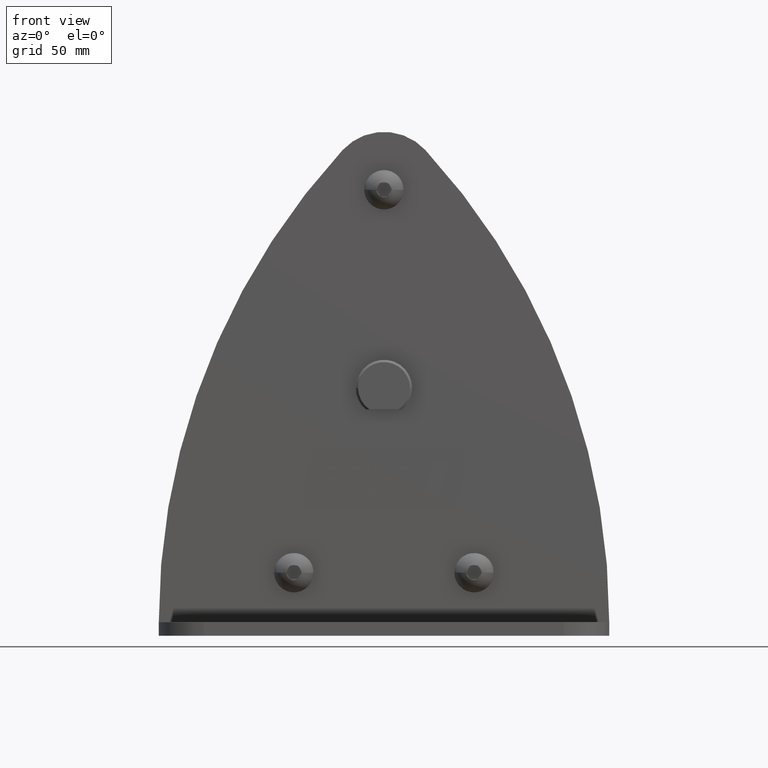
[diagram: clean part render]
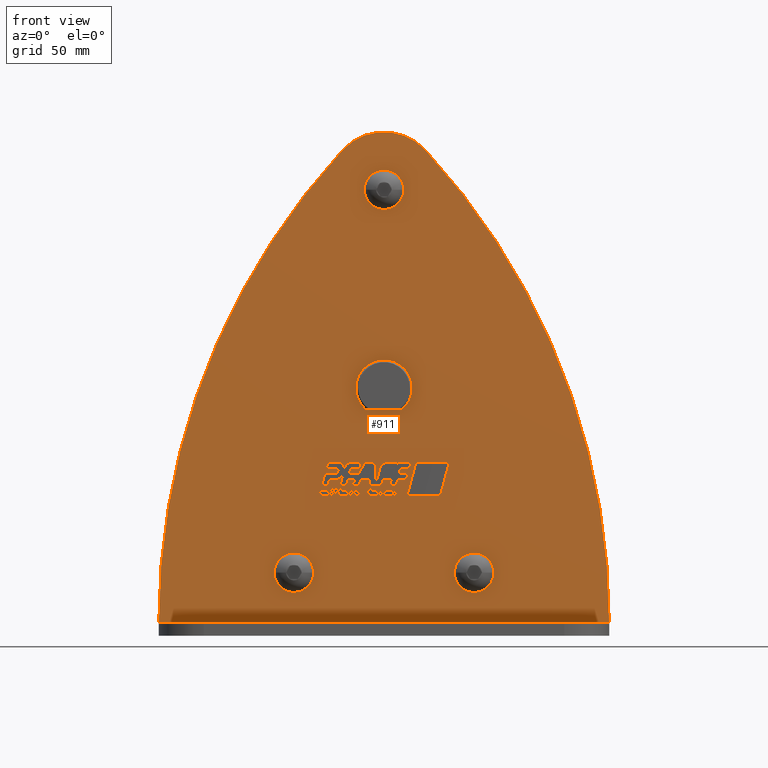
[diagram: same view with one face highlighted and labeled with its STEP entity id]
A machine part, front view. The second image highlights one B-rep face of the part: STEP entity #911.
In plain terms, the highlighted planar face has unit normal (0, -1, 0).
Its self-contained STEP definition (entity closure, byte-faithful):
#911=ADVANCED_FACE('',(#2383,#2384,#2385,#2386,#2387,#2388,#2389,#2390,#2391,#2392,#2393,#2394,#2395,#2396,#2397,#2398,#2399,#2400),#2401,.T.);
#2383=FACE_BOUND('',#4489,.T.);
#2384=FACE_BOUND('',#4490,.T.);
#2385=FACE_BOUND('',#4491,.T.);
#2386=FACE_BOUND('',#4492,.T.);
#2387=FACE_BOUND('',#4493,.T.);
#2388=FACE_BOUND('',#4494,.T.);
#2389=FACE_BOUND('',#4495,.T.);
#2390=FACE_BOUND('',#4496,.T.);
#2391=FACE_BOUND('',#4497,.T.);
#2392=FACE_BOUND('',#4498,.T.);
#2393=FACE_BOUND('',#4499,.T.);
#2394=FACE_BOUND('',#4500,.T.);
#2395=FACE_BOUND('',#4501,.T.);
#2396=FACE_BOUND('',#4502,.T.);
#2397=FACE_BOUND('',#4503,.T.);
#2398=FACE_BOUND('',#4504,.T.);
#2399=FACE_OUTER_BOUND('',#4505,.T.);
#2400=FACE_BOUND('',#4506,.T.);
#2401=PLANE('',#4507);
#4489=EDGE_LOOP('',(#7364,#7365,#7366,#7367));
#4490=EDGE_LOOP('',(#7368,#7369,#7370,#7371));
#4491=EDGE_LOOP('',(#7372,#7373,#7374,#7375));
#4492=EDGE_LOOP('',(#7376,#7377,#7378,#7379));
#4493=EDGE_LOOP('',(#7380,#7381,#7382,#7383));
#4494=EDGE_LOOP('',(#7384,#7385,#7386,#7387,#7388,#7389,#7390,#7391,#7392));
#4495=EDGE_LOOP('',(#7393,#7394,#7395,#7396,#7397,#7398,#7399,#7400,#7401,#7402,#7403,#7404,#7405,#7406,#7407));
#4496=EDGE_LOOP('',(#7408,#7409,#7410,#7411,#7412,#7413,#7414,#7415,#7416,#7417,#7418,#7419,#7420,#7421,#7422,#7423,#7424,#7425,#7426,#7427));
#4497=EDGE_LOOP('',(#7428,#7429,#7430,#7431,#7432,#7433,#7434,#7435,#7436,#7437));
#4498=EDGE_LOOP('',(#7438,#7439,#7440,#7441,#7442,#7443,#7444,#7445,#7446,#7447,#7448,#7449,#7450,#7451,#7452,#7453,#7454));
#4499=EDGE_LOOP('',(#7455,#7456,#7457,#7458,#7459,#7460,#7461,#7462,#7463,#7464,#7465,#7466));
#4500=EDGE_LOOP('',(#7467,#7468,#7469,#7470,#7471,#7472,#7473,#7474,#7475,#7476,#7477,#7478));
#4501=EDGE_LOOP('',(#7479,#7480,#7481,#7482,#7483,#7484,#7485,#7486,#7487,#7488,#7489,#7490,#7491,#7492,#7493,#7494,#7495,#7496,#7497,#7498,#7499,#7500,#7501,#7502,#7503,#7504,#7505,#7506,#7507,#7508,#7509,#7510,#7511,#7512,#7513,#7514,#7515,#7516,#7517,#7518,#7519,#7520,#7521,#7522,#7523,#7524,#7525,#7526,#7527,#7528,#7529,#7530,#7531,#7532));
#4502=EDGE_LOOP('',(#7533,#7534));
#4503=EDGE_LOOP('',(#7535,#7536));
#4504=EDGE_LOOP('',(#7537,#7538));
#4505=EDGE_LOOP('',(#7539,#7540,#7541,#7542));
#4506=EDGE_LOOP('',(#7543,#7544,#7545,#7546));
#4507=AXIS2_PLACEMENT_3D('',#7547,#7548,#7549);
#7364=ORIENTED_EDGE('',*,*,#13204,.T.);
#7365=ORIENTED_EDGE('',*,*,#13209,.T.);
#7366=ORIENTED_EDGE('',*,*,#13213,.T.);
#7367=ORIENTED_EDGE('',*,*,#13216,.T.);
#7368=ORIENTED_EDGE('',*,*,#13219,.T.);
#7369=ORIENTED_EDGE('',*,*,#13220,.T.);
#7370=ORIENTED_EDGE('',*,*,#13221,.T.);
#7371=ORIENTED_EDGE('',*,*,#13222,.T.);
#7372=ORIENTED_EDGE('',*,*,#13223,.T.);
#7373=ORIENTED_EDGE('',*,*,#13224,.T.);
#7374=ORIENTED_EDGE('',*,*,#13225,.T.);
#7375=ORIENTED_EDGE('',*,*,#13226,.T.);
#7376=ORIENTED_EDGE('',*,*,#13227,.T.);
#7377=ORIENTED_EDGE('',*,*,#13228,.T.);
#7378=ORIENTED_EDGE('',*,*,#13229,.T.);
#7379=ORIENTED_EDGE('',*,*,#13230,.T.);
#7380=ORIENTED_EDGE('',*,*,#13231,.T.);
#7381=ORIENTED_EDGE('',*,*,#13232,.T.);
#7382=ORIENTED_EDGE('',*,*,#13233,.T.);
#7383=ORIENTED_EDGE('',*,*,#13234,.T.);
#7384=ORIENTED_EDGE('',*,*,#13235,.T.);
#7385=ORIENTED_EDGE('',*,*,#13236,.T.);
#7386=ORIENTED_EDGE('',*,*,#13237,.T.);
#7387=ORIENTED_EDGE('',*,*,#13238,.T.);
#7388=ORIENTED_EDGE('',*,*,#13239,.T.);
#7389=ORIENTED_EDGE('',*,*,#13240,.T.);
#7390=ORIENTED_EDGE('',*,*,#13241,.T.);
#7391=ORIENTED_EDGE('',*,*,#13242,.T.);
#7392=ORIENTED_EDGE('',*,*,#13243,.T.);
#7393=ORIENTED_EDGE('',*,*,#13244,.T.);
#7394=ORIENTED_EDGE('',*,*,#13245,.T.);
#7395=ORIENTED_EDGE('',*,*,#13246,.T.);
#7396=ORIENTED_EDGE('',*,*,#13247,.T.);
#7397=ORIENTED_EDGE('',*,*,#13248,.T.);
#7398=ORIENTED_EDGE('',*,*,#13249,.T.);
#7399=ORIENTED_EDGE('',*,*,#13250,.T.);
#7400=ORIENTED_EDGE('',*,*,#13251,.T.);
#7401=ORIENTED_EDGE('',*,*,#13252,.T.);
#7402=ORIENTED_EDGE('',*,*,#13253,.T.);
#7403=ORIENTED_EDGE('',*,*,#13254,.T.);
#7404=ORIENTED_EDGE('',*,*,#13255,.T.);
#7405=ORIENTED_EDGE('',*,*,#13256,.T.);
#7406=ORIENTED_EDGE('',*,*,#13257,.T.);
#7407=ORIENTED_EDGE('',*,*,#13258,.T.);
#7408=ORIENTED_EDGE('',*,*,#13259,.T.);
#7409=ORIENTED_EDGE('',*,*,#13260,.T.);
#7410=ORIENTED_EDGE('',*,*,#13261,.T.);
#7411=ORIENTED_EDGE('',*,*,#13262,.T.);
#7412=ORIENTED_EDGE('',*,*,#13263,.T.);
#7413=ORIENTED_EDGE('',*,*,#13264,.T.);
#7414=ORIENTED_EDGE('',*,*,#13265,.T.);
#7415=ORIENTED_EDGE('',*,*,#13266,.T.);
#7416=ORIENTED_EDGE('',*,*,#13267,.T.);
#7417=ORIENTED_EDGE('',*,*,#13268,.T.);
#7418=ORIENTED_EDGE('',*,*,#13269,.T.);
#7419=ORIENTED_EDGE('',*,*,#13270,.T.);
#7420=ORIENTED_EDGE('',*,*,#13271,.T.);
#7421=ORIENTED_EDGE('',*,*,#13272,.T.);
#7422=ORIENTED_EDGE('',*,*,#13273,.T.);
#7423=ORIENTED_EDGE('',*,*,#13274,.T.);
#7424=ORIENTED_EDGE('',*,*,#13275,.T.);
#7425=ORIENTED_EDGE('',*,*,#13276,.T.);
#7426=ORIENTED_EDGE('',*,*,#13277,.T.);
#7427=ORIENTED_EDGE('',*,*,#13278,.T.);
#7428=ORIENTED_EDGE('',*,*,#13279,.T.);
#7429=ORIENTED_EDGE('',*,*,#13280,.T.);
#7430=ORIENTED_EDGE('',*,*,#13281,.T.);
#7431=ORIENTED_EDGE('',*,*,#13282,.T.);
#7432=ORIENTED_EDGE('',*,*,#13283,.T.);
#7433=ORIENTED_EDGE('',*,*,#13284,.T.);
#7434=ORIENTED_EDGE('',*,*,#13285,.T.);
#7435=ORIENTED_EDGE('',*,*,#13286,.T.);
#7436=ORIENTED_EDGE('',*,*,#13287,.T.);
#7437=ORIENTED_EDGE('',*,*,#13288,.T.);
#7438=ORIENTED_EDGE('',*,*,#13289,.T.);
#7439=ORIENTED_EDGE('',*,*,#13290,.T.);
#7440=ORIENTED_EDGE('',*,*,#13291,.T.);
#7441=ORIENTED_EDGE('',*,*,#13292,.T.);
#7442=ORIENTED_EDGE('',*,*,#13293,.T.);
#7443=ORIENTED_EDGE('',*,*,#13294,.T.);
#7444=ORIENTED_EDGE('',*,*,#13295,.T.);
#7445=ORIENTED_EDGE('',*,*,#13296,.T.);
#7446=ORIENTED_EDGE('',*,*,#13297,.T.);
#7447=ORIENTED_EDGE('',*,*,#13298,.T.);
#7448=ORIENTED_EDGE('',*,*,#13299,.T.);
#7449=ORIENTED_EDGE('',*,*,#13300,.T.);
#7450=ORIENTED_EDGE('',*,*,#13301,.T.);
#7451=ORIENTED_EDGE('',*,*,#13302,.T.);
#7452=ORIENTED_EDGE('',*,*,#13303,.T.);
#7453=ORIENTED_EDGE('',*,*,#13304,.T.);
#7454=ORIENTED_EDGE('',*,*,#13305,.T.);
#7455=ORIENTED_EDGE('',*,*,#13306,.T.);
#7456=ORIENTED_EDGE('',*,*,#13307,.T.);
#7457=ORIENTED_EDGE('',*,*,#13308,.T.);
#7458=ORIENTED_EDGE('',*,*,#13309,.T.);
#7459=ORIENTED_EDGE('',*,*,#13310,.T.);
#7460=ORIENTED_EDGE('',*,*,#13311,.T.);
#7461=ORIENTED_EDGE('',*,*,#13312,.T.);
#7462=ORIENTED_EDGE('',*,*,#13313,.T.);
#7463=ORIENTED_EDGE('',*,*,#13314,.T.);
#7464=ORIENTED_EDGE('',*,*,#13315,.T.);
#7465=ORIENTED_EDGE('',*,*,#13316,.T.);
#7466=ORIENTED_EDGE('',*,*,#13317,.T.);
#7467=ORIENTED_EDGE('',*,*,#13318,.T.);
#7468=ORIENTED_EDGE('',*,*,#13319,.T.);
#7469=ORIENTED_EDGE('',*,*,#13320,.T.);
#7470=ORIENTED_EDGE('',*,*,#13321,.T.);
#7471=ORIENTED_EDGE('',*,*,#13322,.T.);
#7472=ORIENTED_EDGE('',*,*,#13323,.T.);
#7473=ORIENTED_EDGE('',*,*,#13324,.T.);
#7474=ORIENTED_EDGE('',*,*,#13325,.T.);
#7475=ORIENTED_EDGE('',*,*,#13326,.T.);
#7476=ORIENTED_EDGE('',*,*,#13327,.T.);
#7477=ORIENTED_EDGE('',*,*,#13328,.T.);
#7478=ORIENTED_EDGE('',*,*,#13329,.T.);
#7479=ORIENTED_EDGE('',*,*,#13330,.T.);
#7480=ORIENTED_EDGE('',*,*,#13331,.T.);
#7481=ORIENTED_EDGE('',*,*,#13332,.T.);
#7482=ORIENTED_EDGE('',*,*,#13333,.T.);
#7483=ORIENTED_EDGE('',*,*,#13334,.T.);
#7484=ORIENTED_EDGE('',*,*,#13335,.T.);
#7485=ORIENTED_EDGE('',*,*,#13336,.T.);
#7486=ORIENTED_EDGE('',*,*,#13337,.T.);
#7487=ORIENTED_EDGE('',*,*,#13338,.T.);
#7488=ORIENTED_EDGE('',*,*,#13339,.T.);
#7489=ORIENTED_EDGE('',*,*,#13340,.T.);
#7490=ORIENTED_EDGE('',*,*,#13341,.T.);
#7491=ORIENTED_EDGE('',*,*,#13342,.T.);
#7492=ORIENTED_EDGE('',*,*,#13343,.T.);
#7493=ORIENTED_EDGE('',*,*,#13344,.T.);
#7494=ORIENTED_EDGE('',*,*,#13345,.T.);
#7495=ORIENTED_EDGE('',*,*,#13346,.T.);
#7496=ORIENTED_EDGE('',*,*,#13347,.T.);
#7497=ORIENTED_EDGE('',*,*,#13348,.T.);
#7498=ORIENTED_EDGE('',*,*,#13349,.T.);
#7499=ORIENTED_EDGE('',*,*,#13350,.T.);
#7500=ORIENTED_EDGE('',*,*,#13351,.T.);
#7501=ORIENTED_EDGE('',*,*,#13352,.T.);
#7502=ORIENTED_EDGE('',*,*,#13353,.T.);
#7503=ORIENTED_EDGE('',*,*,#13354,.T.);
#7504=ORIENTED_EDGE('',*,*,#13355,.T.);
#7505=ORIENTED_EDGE('',*,*,#13356,.T.);
#7506=ORIENTED_EDGE('',*,*,#13357,.T.);
#7507=ORIENTED_EDGE('',*,*,#13358,.T.);
#7508=ORIENTED_EDGE('',*,*,#13359,.T.);
#7509=ORIENTED_EDGE('',*,*,#13360,.T.);
#7510=ORIENTED_EDGE('',*,*,#13361,.T.);
#7511=ORIENTED_EDGE('',*,*,#13362,.T.);
#7512=ORIENTED_EDGE('',*,*,#13363,.T.);
#7513=ORIENTED_EDGE('',*,*,#13364,.T.);
#7514=ORIENTED_EDGE('',*,*,#13365,.T.);
#7515=ORIENTED_EDGE('',*,*,#13366,.T.);
#7516=ORIENTED_EDGE('',*,*,#13367,.T.);
#7517=ORIENTED_EDGE('',*,*,#13368,.T.);
#7518=ORIENTED_EDGE('',*,*,#13369,.T.);
#7519=ORIENTED_EDGE('',*,*,#13370,.T.);
#7520=ORIENTED_EDGE('',*,*,#13371,.T.);
#7521=ORIENTED_EDGE('',*,*,#13372,.T.);
#7522=ORIENTED_EDGE('',*,*,#13373,.T.);
#7523=ORIENTED_EDGE('',*,*,#13374,.T.);
#7524=ORIENTED_EDGE('',*,*,#13375,.T.);
#7525=ORIENTED_EDGE('',*,*,#13376,.T.);
#7526=ORIENTED_EDGE('',*,*,#13377,.T.);
#7527=ORIENTED_EDGE('',*,*,#13378,.T.);
#7528=ORIENTED_EDGE('',*,*,#13379,.T.);
#7529=ORIENTED_EDGE('',*,*,#13380,.T.);
#7530=ORIENTED_EDGE('',*,*,#13381,.T.);
#7531=ORIENTED_EDGE('',*,*,#13382,.T.);
#7532=ORIENTED_EDGE('',*,*,#13383,.T.);
#7533=ORIENTED_EDGE('',*,*,#13075,.T.);
#7534=ORIENTED_EDGE('',*,*,#13384,.T.);
#7535=ORIENTED_EDGE('',*,*,#12697,.T.);
#7536=ORIENTED_EDGE('',*,*,#13385,.T.);
#7537=ORIENTED_EDGE('',*,*,#13058,.T.);
#7538=ORIENTED_EDGE('',*,*,#13386,.T.);
#7539=ORIENTED_EDGE('',*,*,#13387,.T.);
#7540=ORIENTED_EDGE('',*,*,#13388,.F.);
#7541=ORIENTED_EDGE('',*,*,#13389,.F.);
#7542=ORIENTED_EDGE('',*,*,#13390,.F.);
#7543=ORIENTED_EDGE('',*,*,#13028,.T.);
#7544=ORIENTED_EDGE('',*,*,#13032,.T.);
#7545=ORIENTED_EDGE('',*,*,#13391,.T.);
#7546=ORIENTED_EDGE('',*,*,#13392,.T.);
#7547=CARTESIAN_POINT('',(-9.95759030786303E-013,-23.25,-22.7511777277924));
#7548=DIRECTION('',(0.0,-1.0,0.0));
#7549=DIRECTION('',(1.0,0.0,0.0));
#12697=EDGE_CURVE('',#15289,#15291,#15293,.T.);
#13028=EDGE_CURVE('',#15841,#15839,#15842,.T.);
#13032=EDGE_CURVE('',#15839,#15845,#15847,.T.);
#13058=EDGE_CURVE('',#15884,#15888,#15890,.T.);
#13075=EDGE_CURVE('',#15915,#15919,#15921,.T.);
#13204=EDGE_CURVE('',#16135,#16133,#16136,.T.);
#13209=EDGE_CURVE('',#16133,#16141,#16143,.T.);
#13213=EDGE_CURVE('',#16141,#16147,#16149,.T.);
#13216=EDGE_CURVE('',#16147,#16135,#16152,.T.);
#13219=EDGE_CURVE('',#16155,#16156,#16157,.T.);
#13220=EDGE_CURVE('',#16156,#16158,#16159,.T.);
#13221=EDGE_CURVE('',#16158,#16160,#16161,.T.);
#13222=EDGE_CURVE('',#16160,#16155,#16162,.T.);
#13223=EDGE_CURVE('',#16163,#16164,#16165,.T.);
#13224=EDGE_CURVE('',#16164,#16166,#16167,.T.);
#13225=EDGE_CURVE('',#16166,#16168,#16169,.T.);
#13226=EDGE_CURVE('',#16168,#16163,#16170,.T.);
#13227=EDGE_CURVE('',#16171,#16172,#16173,.T.);
#13228=EDGE_CURVE('',#16172,#16174,#16175,.T.);
#13229=EDGE_CURVE('',#16174,#16176,#16177,.T.);
#13230=EDGE_CURVE('',#16176,#16171,#16178,.T.);
#13231=EDGE_CURVE('',#16179,#16180,#16181,.T.);
#13232=EDGE_CURVE('',#16180,#16182,#16183,.T.);
#13233=EDGE_CURVE('',#16182,#16184,#16185,.T.);
#13234=EDGE_CURVE('',#16184,#16179,#16186,.T.);
#13235=EDGE_CURVE('',#16187,#16188,#16189,.T.);
#13236=EDGE_CURVE('',#16188,#16190,#16191,.T.);
#13237=EDGE_CURVE('',#16190,#16192,#16193,.T.);
#13238=EDGE_CURVE('',#16192,#16194,#16195,.T.);
#13239=EDGE_CURVE('',#16194,#16196,#16197,.T.);
#13240=EDGE_CURVE('',#16196,#16198,#16199,.T.);
#13241=EDGE_CURVE('',#16198,#16200,#16201,.T.);
#13242=EDGE_CURVE('',#16200,#16202,#16203,.T.);
#13243=EDGE_CURVE('',#16202,#16187,#16204,.T.);
#13244=EDGE_CURVE('',#16205,#16206,#16207,.T.);
#13245=EDGE_CURVE('',#16206,#16208,#16209,.T.);
#13246=EDGE_CURVE('',#16208,#16210,#16211,.T.);
#13247=EDGE_CURVE('',#16210,#16212,#16213,.T.);
#13248=EDGE_CURVE('',#16212,#16214,#16215,.T.);
#13249=EDGE_CURVE('',#16214,#16216,#16217,.T.);
#13250=EDGE_CURVE('',#16216,#16218,#16219,.T.);
#13251=EDGE_CURVE('',#16218,#16220,#16221,.T.);
#13252=EDGE_CURVE('',#16220,#16222,#16223,.T.);
#13253=EDGE_CURVE('',#16222,#16224,#16225,.T.);
#13254=EDGE_CURVE('',#16224,#16226,#16227,.T.);
#13255=EDGE_CURVE('',#16226,#16228,#16229,.T.);
#13256=EDGE_CURVE('',#16228,#16230,#16231,.T.);
#13257=EDGE_CURVE('',#16230,#16232,#16233,.T.);
#13258=EDGE_CURVE('',#16232,#16205,#16234,.T.);
#13259=EDGE_CURVE('',#16235,#16236,#16237,.T.);
#13260=EDGE_CURVE('',#16236,#16238,#16239,.T.);
#13261=EDGE_CURVE('',#16238,#16240,#16241,.T.);
#13262=EDGE_CURVE('',#16240,#16242,#16243,.T.);
#13263=EDGE_CURVE('',#16242,#16244,#16245,.T.);
#13264=EDGE_CURVE('',#16244,#16246,#16247,.T.);
#13265=EDGE_CURVE('',#16246,#16248,#16249,.T.);
#13266=EDGE_CURVE('',#16248,#16250,#16251,.T.);
#13267=EDGE_CURVE('',#16250,#16252,#16253,.T.);
#13268=EDGE_CURVE('',#16252,#16254,#16255,.T.);
#13269=EDGE_CURVE('',#16254,#16256,#16257,.T.);
#13270=EDGE_CURVE('',#16256,#16258,#16259,.T.);
#13271=EDGE_CURVE('',#16258,#16260,#16261,.T.);
#13272=EDGE_CURVE('',#16260,#16262,#16263,.T.);
#13273=EDGE_CURVE('',#16262,#16264,#16265,.T.);
#13274=EDGE_CURVE('',#16264,#16266,#16267,.T.);
#13275=EDGE_CURVE('',#16266,#16268,#16269,.T.);
#13276=EDGE_CURVE('',#16268,#16270,#16271,.T.);
#13277=EDGE_CURVE('',#16270,#16272,#16273,.T.);
#13278=EDGE_CURVE('',#16272,#16235,#16274,.T.);
#13279=EDGE_CURVE('',#16275,#16276,#16277,.T.);
#13280=EDGE_CURVE('',#16276,#16278,#16279,.T.);
#13281=EDGE_CURVE('',#16278,#16280,#16281,.T.);
#13282=EDGE_CURVE('',#16280,#16282,#16283,.T.);
#13283=EDGE_CURVE('',#16282,#16284,#16285,.T.);
#13284=EDGE_CURVE('',#16284,#16286,#16287,.T.);
#13285=EDGE_CURVE('',#16286,#16288,#16289,.T.);
#13286=EDGE_CURVE('',#16288,#16290,#16291,.T.);
#13287=EDGE_CURVE('',#16290,#16292,#16293,.T.);
#13288=EDGE_CURVE('',#16292,#16275,#16294,.T.);
#13289=EDGE_CURVE('',#16295,#16296,#16297,.T.);
#13290=EDGE_CURVE('',#16296,#16298,#16299,.T.);
#13291=EDGE_CURVE('',#16298,#16300,#16301,.T.);
#13292=EDGE_CURVE('',#16300,#16302,#16303,.T.);
#13293=EDGE_CURVE('',#16302,#16304,#16305,.T.);
#13294=EDGE_CURVE('',#16304,#16306,#16307,.T.);
#13295=EDGE_CURVE('',#16306,#16308,#16309,.T.);
#13296=EDGE_CURVE('',#16308,#16310,#16311,.T.);
#13297=EDGE_CURVE('',#16310,#16312,#16313,.T.);
#13298=EDGE_CURVE('',#16312,#16314,#16315,.T.);
#13299=EDGE_CURVE('',#16314,#16316,#16317,.T.);
#13300=EDGE_CURVE('',#16316,#16318,#16319,.T.);
#13301=EDGE_CURVE('',#16318,#16320,#16321,.T.);
#13302=EDGE_CURVE('',#16320,#16322,#16323,.T.);
#13303=EDGE_CURVE('',#16322,#16324,#16325,.T.);
#13304=EDGE_CURVE('',#16324,#16326,#16327,.T.);
#13305=EDGE_CURVE('',#16326,#16295,#16328,.T.);
#13306=EDGE_CURVE('',#16329,#16330,#16331,.T.);
#13307=EDGE_CURVE('',#16330,#16332,#16333,.T.);
#13308=EDGE_CURVE('',#16332,#16334,#16335,.T.);
#13309=EDGE_CURVE('',#16334,#16336,#16337,.T.);
#13310=EDGE_CURVE('',#16336,#16338,#16339,.T.);
#13311=EDGE_CURVE('',#16338,#16340,#16341,.T.);
#13312=EDGE_CURVE('',#16340,#16342,#16343,.T.);
#13313=EDGE_CURVE('',#16342,#16344,#16345,.T.);
#13314=EDGE_CURVE('',#16344,#16346,#16347,.T.);
#13315=EDGE_CURVE('',#16346,#16348,#16349,.T.);
#13316=EDGE_CURVE('',#16348,#16350,#16351,.T.);
#13317=EDGE_CURVE('',#16350,#16329,#16352,.T.);
#13318=EDGE_CURVE('',#16353,#16354,#16355,.T.);
#13319=EDGE_CURVE('',#16354,#16356,#16357,.T.);
#13320=EDGE_CURVE('',#16356,#16358,#16359,.T.);
#13321=EDGE_CURVE('',#16358,#16360,#16361,.T.);
#13322=EDGE_CURVE('',#16360,#16362,#16363,.T.);
#13323=EDGE_CURVE('',#16362,#16364,#16365,.T.);
#13324=EDGE_CURVE('',#16364,#16366,#16367,.T.);
#13325=EDGE_CURVE('',#16366,#16368,#16369,.T.);
#13326=EDGE_CURVE('',#16368,#16370,#16371,.T.);
#13327=EDGE_CURVE('',#16370,#16372,#16373,.T.);
#13328=EDGE_CURVE('',#16372,#16374,#16375,.T.);
#13329=EDGE_CURVE('',#16374,#16353,#16376,.T.);
#13330=EDGE_CURVE('',#16377,#16378,#16379,.T.);
#13331=EDGE_CURVE('',#16378,#16380,#16381,.T.);
#13332=EDGE_CURVE('',#16380,#16382,#16383,.T.);
#13333=EDGE_CURVE('',#16382,#16384,#16385,.T.);
#13334=EDGE_CURVE('',#16384,#16386,#16387,.T.);
#13335=EDGE_CURVE('',#16386,#16388,#16389,.T.);
#13336=EDGE_CURVE('',#16388,#16390,#16391,.T.);
#13337=EDGE_CURVE('',#16390,#16392,#16393,.T.);
#13338=EDGE_CURVE('',#16392,#16394,#16395,.T.);
#13339=EDGE_CURVE('',#16394,#16396,#16397,.T.);
#13340=EDGE_CURVE('',#16396,#16398,#16399,.T.);
#13341=EDGE_CURVE('',#16398,#16400,#16401,.T.);
#13342=EDGE_CURVE('',#16400,#16402,#16403,.T.);
#13343=EDGE_CURVE('',#16402,#16404,#16405,.T.);
#13344=EDGE_CURVE('',#16404,#16406,#16407,.T.);
#13345=EDGE_CURVE('',#16406,#16408,#16409,.T.);
#13346=EDGE_CURVE('',#16408,#16410,#16411,.T.);
#13347=EDGE_CURVE('',#16410,#16412,#16413,.T.);
#13348=EDGE_CURVE('',#16412,#16414,#16415,.T.);
#13349=EDGE_CURVE('',#16414,#16416,#16417,.T.);
#13350=EDGE_CURVE('',#16416,#16418,#16419,.T.);
#13351=EDGE_CURVE('',#16418,#16420,#16421,.T.);
#13352=EDGE_CURVE('',#16420,#16422,#16423,.T.);
#13353=EDGE_CURVE('',#16422,#16424,#16425,.T.);
#13354=EDGE_CURVE('',#16424,#16426,#16427,.T.);
#13355=EDGE_CURVE('',#16426,#16428,#16429,.T.);
#13356=EDGE_CURVE('',#16428,#16430,#16431,.T.);
#13357=EDGE_CURVE('',#16430,#16432,#16433,.T.);
#13358=EDGE_CURVE('',#16432,#16434,#16435,.T.);
#13359=EDGE_CURVE('',#16434,#16436,#16437,.T.);
#13360=EDGE_CURVE('',#16436,#16438,#16439,.T.);
#13361=EDGE_CURVE('',#16438,#16440,#16441,.T.);
#13362=EDGE_CURVE('',#16440,#16442,#16443,.T.);
#13363=EDGE_CURVE('',#16442,#16444,#16445,.T.);
#13364=EDGE_CURVE('',#16444,#16446,#16447,.T.);
#13365=EDGE_CURVE('',#16446,#16448,#16449,.T.);
#13366=EDGE_CURVE('',#16448,#16450,#16451,.T.);
#13367=EDGE_CURVE('',#16450,#16452,#16453,.T.);
#13368=EDGE_CURVE('',#16452,#16454,#16455,.T.);
#13369=EDGE_CURVE('',#16454,#16456,#16457,.T.);
#13370=EDGE_CURVE('',#16456,#16458,#16459,.T.);
#13371=EDGE_CURVE('',#16458,#16460,#16461,.T.);
#13372=EDGE_CURVE('',#16460,#16462,#16463,.T.);
#13373=EDGE_CURVE('',#16462,#16464,#16465,.T.);
#13374=EDGE_CURVE('',#16464,#16466,#16467,.T.);
#13375=EDGE_CURVE('',#16466,#16468,#16469,.T.);
#13376=EDGE_CURVE('',#16468,#16470,#16471,.T.);
#13377=EDGE_CURVE('',#16470,#16472,#16473,.T.);
#13378=EDGE_CURVE('',#16472,#16474,#16475,.T.);
#13379=EDGE_CURVE('',#16474,#16476,#16477,.T.);
#13380=EDGE_CURVE('',#16476,#16478,#16479,.T.);
#13381=EDGE_CURVE('',#16478,#16480,#16481,.T.);
#13382=EDGE_CURVE('',#16480,#16482,#16483,.T.);
#13383=EDGE_CURVE('',#16482,#16377,#16484,.T.);
#13384=EDGE_CURVE('',#15919,#15915,#16485,.T.);
#13385=EDGE_CURVE('',#15291,#15289,#16486,.T.);
#13386=EDGE_CURVE('',#15888,#15884,#16487,.T.);
#13387=EDGE_CURVE('',#16488,#16489,#16490,.T.);
#13388=EDGE_CURVE('',#16491,#16489,#16492,.T.);
#13389=EDGE_CURVE('',#16493,#16491,#16494,.T.);
#13390=EDGE_CURVE('',#16488,#16493,#16495,.T.);
#13391=EDGE_CURVE('',#15845,#16496,#16497,.T.);
#13392=EDGE_CURVE('',#16496,#15841,#16498,.T.);
#15289=VERTEX_POINT('',#19733);
#15291=VERTEX_POINT('',#19736);
#15293=CIRCLE('',#19739,8.75);
#15839=VERTEX_POINT('',#21942);
#15841=VERTEX_POINT('',#21945);
#15842=CIRCLE('',#21946,12.5);
#15845=VERTEX_POINT('',#21950);
#15847=CIRCLE('',#21953,12.5);
#15884=VERTEX_POINT('',#21998);
#15888=VERTEX_POINT('',#22003);
#15890=CIRCLE('',#22006,8.75);
#15915=VERTEX_POINT('',#22049);
#15919=VERTEX_POINT('',#22054);
#15921=CIRCLE('',#22057,8.75);
#16133=VERTEX_POINT('',#22364);
#16135=VERTEX_POINT('',#22367);
#16136=LINE('',#22368,#22369);
#16141=VERTEX_POINT('',#22376);
#16143=LINE('',#22379,#22380);
#16147=VERTEX_POINT('',#22385);
#16149=LINE('',#22388,#22389);
#16152=LINE('',#22393,#22394);
#16155=VERTEX_POINT('',#22397);
#16156=VERTEX_POINT('',#22398);
#16157=LINE('',#22399,#22400);
#16158=VERTEX_POINT('',#22401);
#16159=LINE('',#22402,#22403);
#16160=VERTEX_POINT('',#22404);
#16161=LINE('',#22405,#22406);
#16162=LINE('',#22407,#22408);
#16163=VERTEX_POINT('',#22409);
#16164=VERTEX_POINT('',#22410);
#16165=LINE('',#22411,#22412);
#16166=VERTEX_POINT('',#22413);
#16167=LINE('',#22414,#22415);
#16168=VERTEX_POINT('',#22416);
#16169=LINE('',#22417,#22418);
#16170=LINE('',#22419,#22420);
#16171=VERTEX_POINT('',#22421);
#16172=VERTEX_POINT('',#22422);
#16173=LINE('',#22423,#22424);
#16174=VERTEX_POINT('',#22425);
#16175=LINE('',#22426,#22427);
#16176=VERTEX_POINT('',#22428);
#16177=LINE('',#22429,#22430);
#16178=LINE('',#22431,#22432);
#16179=VERTEX_POINT('',#22433);
#16180=VERTEX_POINT('',#22434);
#16181=LINE('',#22435,#22436);
#16182=VERTEX_POINT('',#22437);
#16183=LINE('',#22438,#22439);
#16184=VERTEX_POINT('',#22440);
#16185=LINE('',#22441,#22442);
#16186=LINE('',#22443,#22444);
#16187=VERTEX_POINT('',#22445);
#16188=VERTEX_POINT('',#22446);
#16189=LINE('',#22447,#22448);
#16190=VERTEX_POINT('',#22449);
#16191=CIRCLE('',#22450,1.90297988906065);
#16192=VERTEX_POINT('',#22451);
#16193=CIRCLE('',#22452,0.695338885984296);
#16194=VERTEX_POINT('',#22453);
#16195=LINE('',#22454,#22455);
#16196=VERTEX_POINT('',#22456);
#16197=LINE('',#22457,#22458);
#16198=VERTEX_POINT('',#22459);
#16199=LINE('',#22460,#22461);
#16200=VERTEX_POINT('',#22462);
#16201=LINE('',#22463,#22464);
#16202=VERTEX_POINT('',#22465);
#16203=LINE('',#22466,#22467);
#16204=CIRCLE('',#22468,2.31779625505053);
#16205=VERTEX_POINT('',#22469);
#16206=VERTEX_POINT('',#22470);
#16207=CIRCLE('',#22471,0.347669272294889);
#16208=VERTEX_POINT('',#22472);
#16209=CIRCLE('',#22473,1.7383472178957);
#16210=VERTEX_POINT('',#22474);
#16211=CIRCLE('',#22475,0.695338906612462);
#16212=VERTEX_POINT('',#22476);
#16213=LINE('',#22477,#22478);
#16214=VERTEX_POINT('',#22479);
#16215=LINE('',#22480,#22481);
#16216=VERTEX_POINT('',#22482);
#16217=LINE('',#22483,#22484);
#16218=VERTEX_POINT('',#22485);
#16219=LINE('',#22486,#22487);
#16220=VERTEX_POINT('',#22488);
#16221=LINE('',#22489,#22490);
#16222=VERTEX_POINT('',#22491);
#16223=CIRCLE('',#22492,0.781604153476139);
#16224=VERTEX_POINT('',#22493);
#16225=CIRCLE('',#22494,3.86299373980962);
#16226=VERTEX_POINT('',#22495);
#16227=CIRCLE('',#22496,1.93149685296327);
#16228=VERTEX_POINT('',#22497);
#16229=CIRCLE('',#22498,0.695338842299168);
#16230=VERTEX_POINT('',#22499);
#16231=LINE('',#22500,#22501);
#16232=VERTEX_POINT('',#22502);
#16233=LINE('',#22503,#22504);
#16234=LINE('',#22505,#22506);
#16235=VERTEX_POINT('',#22507);
#16236=VERTEX_POINT('',#22508);
#16237=CIRCLE('',#22509,1.64177234290645);
#16238=VERTEX_POINT('',#22510);
#16239=CIRCLE('',#22511,7.72598749988695);
#16240=VERTEX_POINT('',#22512);
#16241=CIRCLE('',#22513,0.695338874045311);
#16242=VERTEX_POINT('',#22514);
#16243=LINE('',#22515,#22516);
#16244=VERTEX_POINT('',#22517);
#16245=CIRCLE('',#22518,0.772598749071972);
#16246=VERTEX_POINT('',#22519);
#16247=CIRCLE('',#22520,1.54519749756382);
#16248=VERTEX_POINT('',#22521);
#16249=CIRCLE('',#22522,0.13520478329685);
#16250=VERTEX_POINT('',#22523);
#16251=LINE('',#22524,#22525);
#16252=VERTEX_POINT('',#22526);
#16253=CIRCLE('',#22527,3.86299374194257);
#16254=VERTEX_POINT('',#22528);
#16255=CIRCLE('',#22529,0.5562710997008);
#16256=VERTEX_POINT('',#22530);
#16257=CIRCLE('',#22531,1.64177234512556);
#16258=VERTEX_POINT('',#22532);
#16259=CIRCLE('',#22533,6.32701097862831);
#16260=VERTEX_POINT('',#22534);
#16261=CIRCLE('',#22535,7.72598748716319);
#16262=VERTEX_POINT('',#22536);
#16263=CIRCLE('',#22537,0.695338880201633);
#16264=VERTEX_POINT('',#22538);
#16265=LINE('',#22539,#22540);
#16266=VERTEX_POINT('',#22541);
#16267=CIRCLE('',#22542,0.772598749071971);
#16268=VERTEX_POINT('',#22543);
#16269=CIRCLE('',#22544,1.54519749756382);
#16270=VERTEX_POINT('',#22545);
#16271=CIRCLE('',#22546,0.13520478329685);
#16272=VERTEX_POINT('',#22547);
#16273=LINE('',#22548,#22549);
#16274=CIRCLE('',#22550,0.556271097379784);
#16275=VERTEX_POINT('',#22551);
#16276=VERTEX_POINT('',#22552);
#16277=LINE('',#22553,#22554);
#16278=VERTEX_POINT('',#22555);
#16279=CIRCLE('',#22556,0.432655306455157);
#16280=VERTEX_POINT('',#22557);
#16281=CIRCLE('',#22558,1.5451974971095);
#16282=VERTEX_POINT('',#22559);
#16283=LINE('',#22560,#22561);
#16284=VERTEX_POINT('',#22562);
#16285=CIRCLE('',#22563,1.93149687856003);
#16286=VERTEX_POINT('',#22564);
#16287=CIRCLE('',#22565,6.180790001498);
#16288=VERTEX_POINT('',#22566);
#16289=CIRCLE('',#22567,0.965748433894455);
#16290=VERTEX_POINT('',#22568);
#16291=CIRCLE('',#22569,2.00875675443065);
#16292=VERTEX_POINT('',#22570);
#16293=CIRCLE('',#22571,8.72617182894747);
#16294=CIRCLE('',#22572,1.14344616300504);
#16295=VERTEX_POINT('',#22573);
#16296=VERTEX_POINT('',#22574);
#16297=CIRCLE('',#22575,0.579449085134155);
#16298=VERTEX_POINT('',#22576);
#16299=LINE('',#22577,#22578);
#16300=VERTEX_POINT('',#22579);
#16301=LINE('',#22580,#22581);
#16302=VERTEX_POINT('',#22582);
#16303=CIRCLE('',#22583,1.931496875);
#16304=VERTEX_POINT('',#22584);
#16305=LINE('',#22585,#22586);
#16306=VERTEX_POINT('',#22587);
#16307=CIRCLE('',#22588,3.86299374802007);
#16308=VERTEX_POINT('',#22589);
#16309=CIRCLE('',#22590,0.540819096426996);
#16310=VERTEX_POINT('',#22591);
#16311=CIRCLE('',#22592,0.965748437621186);
#16312=VERTEX_POINT('',#22593);
#16313=LINE('',#22594,#22595);
#16314=VERTEX_POINT('',#22596);
#16315=CIRCLE('',#22597,0.193149693552532);
#16316=VERTEX_POINT('',#22598);
#16317=CIRCLE('',#22599,3.86299373960414);
#16318=VERTEX_POINT('',#22600);
#16319=CIRCLE('',#22601,0.695338879512338);
#16320=VERTEX_POINT('',#22602);
#16321=LINE('',#22603,#22604);
#16322=VERTEX_POINT('',#22605);
#16323=CIRCLE('',#22606,0.965748435644311);
#16324=VERTEX_POINT('',#22607);
#16325=CIRCLE('',#22608,7.72598748518318);
#16326=VERTEX_POINT('',#22609);
#16327=CIRCLE('',#22610,0.579449085134151);
#16328=LINE('',#22611,#22612);
#16329=VERTEX_POINT('',#22613);
#16330=VERTEX_POINT('',#22614);
#16331=LINE('',#22615,#22616);
#16332=VERTEX_POINT('',#22617);
#16333=LINE('',#22618,#22619);
#16334=VERTEX_POINT('',#22620);
#16335=LINE('',#22621,#22622);
#16336=VERTEX_POINT('',#22623);
#16337=CIRCLE('',#22624,1.93149687176934);
#16338=VERTEX_POINT('',#22625);
#16339=CIRCLE('',#22626,3.70847400009757);
#16340=VERTEX_POINT('',#22627);
#16341=CIRCLE('',#22628,1.93149687819647);
#16342=VERTEX_POINT('',#22629);
#16343=CIRCLE('',#22630,0.927118493825275);
#16344=VERTEX_POINT('',#22631);
#16345=CIRCLE('',#22632,1.93149687612774);
#16346=VERTEX_POINT('',#22633);
#16347=CIRCLE('',#22634,3.70847399994951);
#16348=VERTEX_POINT('',#22635);
#16349=CIRCLE('',#22636,1.83492203396171);
#16350=VERTEX_POINT('',#22637);
#16351=LINE('',#22638,#22639);
#16352=LINE('',#22640,#22641);
#16353=VERTEX_POINT('',#22642);
#16354=VERTEX_POINT('',#22643);
#16355=CIRCLE('',#22644,1.93149687612774);
#16356=VERTEX_POINT('',#22645);
#16357=CIRCLE('',#22646,3.70847399994952);
#16358=VERTEX_POINT('',#22647);
#16359=CIRCLE('',#22648,1.8349220339617);
#16360=VERTEX_POINT('',#22649);
#16361=LINE('',#22650,#22651);
#16362=VERTEX_POINT('',#22652);
#16363=LINE('',#22653,#22654);
#16364=VERTEX_POINT('',#22655);
#16365=LINE('',#22656,#22657);
#16366=VERTEX_POINT('',#22658);
#16367=LINE('',#22659,#22660);
#16368=VERTEX_POINT('',#22661);
#16369=LINE('',#22662,#22663);
#16370=VERTEX_POINT('',#22664);
#16371=CIRCLE('',#22665,1.93149687176933);
#16372=VERTEX_POINT('',#22666);
#16373=CIRCLE('',#22667,3.70847399605884);
#16374=VERTEX_POINT('',#22668);
#16375=CIRCLE('',#22669,1.93149687819647);
#16376=CIRCLE('',#22670,0.927118493825271);
#16377=VERTEX_POINT('',#22671);
#16378=VERTEX_POINT('',#22672);
#16379=LINE('',#22673,#22674);
#16380=VERTEX_POINT('',#22675);
#16381=LINE('',#22676,#22677);
#16382=VERTEX_POINT('',#22678);
#16383=CIRCLE('',#22679,1.313417875);
#16384=VERTEX_POINT('',#22680);
#16385=LINE('',#22681,#22682);
#16386=VERTEX_POINT('',#22683);
#16387=CIRCLE('',#22684,0.788050724999999);
#16388=VERTEX_POINT('',#22685);
#16389=LINE('',#22686,#22687);
#16390=VERTEX_POINT('',#22688);
#16391=LINE('',#22689,#22690);
#16392=VERTEX_POINT('',#22691);
#16393=LINE('',#22692,#22693);
#16394=VERTEX_POINT('',#22694);
#16395=CIRCLE('',#22695,2.70409562739031);
#16396=VERTEX_POINT('',#22696);
#16397=LINE('',#22697,#22698);
#16398=VERTEX_POINT('',#22699);
#16399=CIRCLE('',#22700,3.322174625);
#16400=VERTEX_POINT('',#22701);
#16401=LINE('',#22702,#22703);
#16402=VERTEX_POINT('',#22704);
#16403=LINE('',#22705,#22706);
#16404=VERTEX_POINT('',#22707);
#16405=LINE('',#22708,#22709);
#16406=VERTEX_POINT('',#22710);
#16407=CIRCLE('',#22711,0.788050724999999);
#16408=VERTEX_POINT('',#22712);
#16409=LINE('',#22713,#22714);
#16410=VERTEX_POINT('',#22715);
#16411=LINE('',#22716,#22717);
#16412=VERTEX_POINT('',#22718);
#16413=LINE('',#22719,#22720);
#16414=VERTEX_POINT('',#22721);
#16415=CIRCLE('',#22722,1.467937625);
#16416=VERTEX_POINT('',#22723);
#16417=LINE('',#22724,#22725);
#16418=VERTEX_POINT('',#22726);
#16419=CIRCLE('',#22727,1.46793761590579);
#16420=VERTEX_POINT('',#22728);
#16421=LINE('',#22729,#22730);
#16422=VERTEX_POINT('',#22731);
#16423=LINE('',#22732,#22733);
#16424=VERTEX_POINT('',#22734);
#16425=CIRCLE('',#22735,3.322174625);
#16426=VERTEX_POINT('',#22736);
#16427=LINE('',#22737,#22738);
#16428=VERTEX_POINT('',#22739);
#16429=LINE('',#22740,#22741);
#16430=VERTEX_POINT('',#22742);
#16431=CIRCLE('',#22743,3.322174625);
#16432=VERTEX_POINT('',#22744);
#16433=LINE('',#22745,#22746);
#16434=VERTEX_POINT('',#22747);
#16435=LINE('',#22748,#22749);
#16436=VERTEX_POINT('',#22750);
#16437=LINE('',#22751,#22752);
#16438=VERTEX_POINT('',#22753);
#16439=CIRCLE('',#22754,0.788050724999999);
#16440=VERTEX_POINT('',#22755);
#16441=LINE('',#22756,#22757);
#16442=VERTEX_POINT('',#22758);
#16443=LINE('',#22759,#22760);
#16444=VERTEX_POINT('',#22761);
#16445=LINE('',#22762,#22763);
#16446=VERTEX_POINT('',#22764);
#16447=LINE('',#22765,#22766);
#16448=VERTEX_POINT('',#22767);
#16449=LINE('',#22768,#22769);
#16450=VERTEX_POINT('',#22770);
#16451=LINE('',#22771,#22772);
#16452=VERTEX_POINT('',#22773);
#16453=LINE('',#22774,#22775);
#16454=VERTEX_POINT('',#22776);
#16455=LINE('',#22777,#22778);
#16456=VERTEX_POINT('',#22779);
#16457=LINE('',#22780,#22781);
#16458=VERTEX_POINT('',#22782);
#16459=LINE('',#22783,#22784);
#16460=VERTEX_POINT('',#22785);
#16461=LINE('',#22786,#22787);
#16462=VERTEX_POINT('',#22788);
#16463=LINE('',#22789,#22790);
#16464=VERTEX_POINT('',#22791);
#16465=LINE('',#22792,#22793);
#16466=VERTEX_POINT('',#22794);
#16467=LINE('',#22795,#22796);
#16468=VERTEX_POINT('',#22797);
#16469=LINE('',#22798,#22799);
#16470=VERTEX_POINT('',#22800);
#16471=LINE('',#22801,#22802);
#16472=VERTEX_POINT('',#22803);
#16473=LINE('',#22804,#22805);
#16474=VERTEX_POINT('',#22806);
#16475=LINE('',#22807,#22808);
#16476=VERTEX_POINT('',#22809);
#16477=LINE('',#22810,#22811);
#16478=VERTEX_POINT('',#22812);
#16479=CIRCLE('',#22813,3.631214125);
#16480=VERTEX_POINT('',#22814);
#16481=LINE('',#22815,#22816);
#16482=VERTEX_POINT('',#22817);
#16483=LINE('',#22818,#22819);
#16484=LINE('',#22820,#22821);
#16485=CIRCLE('',#22822,8.75);
#16486=CIRCLE('',#22823,8.75);
#16487=CIRCLE('',#22824,8.75);
#16488=VERTEX_POINT('',#22825);
#16489=VERTEX_POINT('',#22826);
#16490=LINE('',#22827,#22828);
#16491=VERTEX_POINT('',#22829);
#16492=CIRCLE('',#22830,309.999999979701);
#16493=VERTEX_POINT('',#22831);
#16494=CIRCLE('',#22832,24.999999988);
#16495=CIRCLE('',#22833,309.999999979699);
#16496=VERTEX_POINT('',#22834);
#16497=CIRCLE('',#22835,12.5);
#16498=LINE('',#22836,#22837);
#19733=CARTESIAN_POINT('',(48.75,-23.25,-82.0));
#19736=CARTESIAN_POINT('',(31.25,-23.25,-82.0));
#19739=AXIS2_PLACEMENT_3D('',#26814,#26815,#26816);
#21942=CARTESIAN_POINT('',(-12.5,-23.25,1.53080849893419E-015));
#21945=CARTESIAN_POINT('',(-8.12403840463596,-23.25,-9.5));
#21946=AXIS2_PLACEMENT_3D('',#27257,#27258,#27259);
#21950=CARTESIAN_POINT('',(12.5,-23.25,-1.53080849893419E-015));
#21953=AXIS2_PLACEMENT_3D('',#27262,#27263,#27264);
#21998=CARTESIAN_POINT('',(8.75,-23.25,88.0));
#22003=CARTESIAN_POINT('',(-8.75,-23.25,88.0));
#22006=AXIS2_PLACEMENT_3D('',#27302,#27303,#27304);
#22049=CARTESIAN_POINT('',(-31.25,-23.25,-82.0));
#22054=CARTESIAN_POINT('',(-48.75,-23.25,-82.0));
#22057=AXIS2_PLACEMENT_3D('',#27325,#27326,#27327);
#22364=CARTESIAN_POINT('',(25.0,-23.25,-48.0));
#22367=CARTESIAN_POINT('',(29.0161339476721,-23.25,-33.0115842546974));
#22368=CARTESIAN_POINT('',(29.3268285469348,-23.25,-31.8520562398838));
#22369=VECTOR('',#27484,1.0);
#22376=CARTESIAN_POINT('',(10.166104,-23.25,-48.0));
#22379=CARTESIAN_POINT('',(12.4999999999995,-23.25,-48.0));
#22380=VECTOR('',#27488,1.0);
#22385=CARTESIAN_POINT('',(14.182237947672,-23.25,-33.0115842546974));
#22388=CARTESIAN_POINT('',(12.9817068920357,-23.25,-37.4920270913849));
#22389=VECTOR('',#27491,1.0);
#22393=CARTESIAN_POINT('',(7.09111897383552,-23.25,-33.0115842546974));
#22394=VECTOR('',#27493,1.0);
#22397=CARTESIAN_POINT('',(-22.2261402731926,-23.25,-44.6005655046972));
#22398=CARTESIAN_POINT('',(-22.3503506033828,-23.25,-45.0641247485165));
#22399=CARTESIAN_POINT('',(-18.7505321028326,-23.25,-31.6294197650737));
#22400=VECTOR('',#27494,1.0);
#22401=CARTESIAN_POINT('',(-23.6301155602224,-23.25,-45.0641247485165));
#22402=CARTESIAN_POINT('',(-11.1751753016919,-23.25,-45.0641247485165));
#22403=VECTOR('',#27495,1.0);
#22404=CARTESIAN_POINT('',(-23.5059052300322,-23.25,-44.6005655046972));
#22405=CARTESIAN_POINT('',(-20.0495382231055,-23.25,-31.7012287616177));
#22406=VECTOR('',#27496,1.0);
#22407=CARTESIAN_POINT('',(-11.7529526150166,-23.25,-44.6005655046972));
#22408=VECTOR('',#27497,1.0);
#22409=CARTESIAN_POINT('',(-24.3836581929576,-23.25,-47.8763842000617));
#22410=CARTESIAN_POINT('',(-23.7295409534163,-23.25,-45.4351853857717));
#22411=CARTESIAN_POINT('',(-20.4263097671474,-23.25,-33.1073585562872));
#22412=VECTOR('',#27498,1.0);
#22413=CARTESIAN_POINT('',(-22.4497759965767,-23.25,-45.4351853857717));
#22414=CARTESIAN_POINT('',(-11.8647704767086,-23.25,-45.4351853857717));
#22415=VECTOR('',#27499,1.0);
#22416=CARTESIAN_POINT('',(-23.103893267022,-23.25,-47.8763842000617));
#22417=CARTESIAN_POINT('',(-18.862350005183,-23.25,-32.046729718515));
#22418=VECTOR('',#27500,1.0);
#22419=CARTESIAN_POINT('',(-11.5519466335115,-23.25,-47.8763842000617));
#22420=VECTOR('',#27501,1.0);
#22421=CARTESIAN_POINT('',(-1.7007849451767,-23.25,-44.6005655046976));
#22422=CARTESIAN_POINT('',(-0.421020019240927,-23.25,-44.6005655046976));
#22423=CARTESIAN_POINT('',(-0.850392472588846,-23.25,-44.6005655046976));
#22424=VECTOR('',#27502,1.0);
#22425=CARTESIAN_POINT('',(-1.29877298216634,-23.25,-47.8763842000617));
#22426=CARTESIAN_POINT('',(2.32425491953876,-23.25,-34.3550598234672));
#22427=VECTOR('',#27503,1.0);
#22428=CARTESIAN_POINT('',(-2.57853790810191,-23.25,-47.8763842000617));
#22429=CARTESIAN_POINT('',(-0.649386491083668,-23.25,-47.8763842000617));
#22430=VECTOR('',#27504,1.0);
#22431=CARTESIAN_POINT('',(0.648477508433832,-23.25,-35.8329985571508));
#22432=VECTOR('',#27505,1.0);
#22433=CARTESIAN_POINT('',(-21.6674763421521,-23.25,-44.6005655046972));
#22434=CARTESIAN_POINT('',(-20.3877114162164,-23.25,-44.6005655046972));
#22435=CARTESIAN_POINT('',(-10.8337381710766,-23.25,-44.6005655046972));
#22436=VECTOR('',#27506,1.0);
#22437=CARTESIAN_POINT('',(-21.2654643791418,-23.25,-47.8763842000617));
#22438=CARTESIAN_POINT('',(-16.973679138727,-23.25,-31.8592234260512));
#22439=VECTOR('',#27507,1.0);
#22440=CARTESIAN_POINT('',(-22.5452293050773,-23.25,-47.8763842000617));
#22441=CARTESIAN_POINT('',(-10.6327321895714,-23.25,-47.8763842000617));
#22442=VECTOR('',#27508,1.0);
#22443=CARTESIAN_POINT('',(-18.6494565498322,-23.25,-33.3371621597355));
#22444=VECTOR('',#27509,1.0);
#22445=CARTESIAN_POINT('',(-7.02838260681872,-23.25,-45.5437804213301));
#22446=CARTESIAN_POINT('',(-7.27333763643804,-23.25,-46.4579649507297));
#22447=CARTESIAN_POINT('',(-3.94390081398554,-23.25,-34.0323387473016));
#22448=VECTOR('',#27510,1.0);
#22449=CARTESIAN_POINT('',(-9.0535963056462,-23.25,-46.5123315801082));
#22450=AXIS2_PLACEMENT_3D('',#27511,#27512,#27513);
#22451=CARTESIAN_POINT('',(-9.38123624745045,-23.25,-46.936646141613));
#22452=AXIS2_PLACEMENT_3D('',#27514,#27515,#27516);
#22453=CARTESIAN_POINT('',(-9.63303832532769,-23.25,-47.8763842000617));
#22454=CARTESIAN_POINT('',(-6.04384055548719,-23.25,-34.481317042345));
#22455=VECTOR('',#27517,1.0);
#22456=CARTESIAN_POINT('',(-10.9128032512635,-23.25,-47.8763842000617));
#22457=CARTESIAN_POINT('',(-4.81651916266434,-23.25,-47.8763842000617));
#22458=VECTOR('',#27518,1.0);
#22459=CARTESIAN_POINT('',(-10.2586857026827,-23.25,-45.4351843504894));
#22460=CARTESIAN_POINT('',(-7.40664273423222,-23.25,-34.7912154175945));
#22461=VECTOR('',#27519,1.0);
#22462=CARTESIAN_POINT('',(-8.97892077674711,-23.25,-45.4351843504894));
#22463=CARTESIAN_POINT('',(-5.12934285134184,-23.25,-45.4351843504894));
#22464=VECTOR('',#27520,1.0);
#22465=CARTESIAN_POINT('',(-9.09889874849752,-23.25,-45.8829481997195));
#22466=CARTESIAN_POINT('',(-5.84268287735861,-23.25,-33.7305861359691));
#22467=VECTOR('',#27521,1.0);
#22468=AXIS2_PLACEMENT_3D('',#27522,#27523,#27524);
#22469=CARTESIAN_POINT('',(5.55747703249654,-23.25,-46.8574547384527));
#22470=CARTESIAN_POINT('',(5.82826575989919,-23.25,-47.2889707203235));
#22471=AXIS2_PLACEMENT_3D('',#27525,#27526,#27527);
#22472=CARTESIAN_POINT('',(6.52835204130226,-23.25,-47.2787429996933));
#22473=AXIS2_PLACEMENT_3D('',#27528,#27529,#27530);
#22474=CARTESIAN_POINT('',(7.05003144925188,-23.25,-46.7797353947445));
#22475=AXIS2_PLACEMENT_3D('',#27531,#27532,#27533);
#22476=CARTESIAN_POINT('',(7.41030256676814,-23.25,-45.4351841839114));
#22477=CARTESIAN_POINT('',(9.81746811767417,-23.25,-36.4515127243185));
#22478=VECTOR('',#27534,1.0);
#22479=CARTESIAN_POINT('',(8.69006758541548,-23.25,-45.4351841839114));
#22480=CARTESIAN_POINT('',(3.70515128338357,-23.25,-45.4351841839114));
#22481=VECTOR('',#27535,1.0);
#22482=CARTESIAN_POINT('',(8.03595025316262,-23.25,-47.8763840334838));
#22483=CARTESIAN_POINT('',(11.2345057454028,-23.25,-35.9392088487004));
#22484=VECTOR('',#27536,1.0);
#22485=CARTESIAN_POINT('',(6.75618523451508,-23.25,-47.8763840334838));
#22486=CARTESIAN_POINT('',(4.01797512658081,-23.25,-47.8763840334838));
#22487=VECTOR('',#27537,1.0);
#22488=CARTESIAN_POINT('',(6.85616692971304,-23.25,-47.5032474898312));
#22489=CARTESIAN_POINT('',(9.6705480965449,-23.25,-36.9998402508046));
#22490=VECTOR('',#27538,1.0);
#22491=CARTESIAN_POINT('',(6.5129940324684,-23.25,-47.752367921131));
#22492=AXIS2_PLACEMENT_3D('',#27539,#27540,#27541);
#22493=CARTESIAN_POINT('',(5.41562762352944,-23.25,-47.9834368875034));
#22494=AXIS2_PLACEMENT_3D('',#27542,#27543,#27544);
#22495=CARTESIAN_POINT('',(4.67523549479422,-23.25,-47.8845917885808));
#22496=AXIS2_PLACEMENT_3D('',#27545,#27546,#27547);
#22497=CARTESIAN_POINT('',(4.22713771778944,-23.25,-47.0462006567249));
#22498=AXIS2_PLACEMENT_3D('',#27548,#27549,#27550);
#22499=CARTESIAN_POINT('',(4.65880810890289,-23.25,-45.4351843504894));
#22500=CARTESIAN_POINT('',(7.12243261990256,-23.25,-36.2408097967364));
#22501=VECTOR('',#27551,1.0);
#22502=CARTESIAN_POINT('',(5.93857312755042,-23.25,-45.4351843504894));
#22503=CARTESIAN_POINT('',(2.32940405445094,-23.25,-45.4351843504894));
#22504=VECTOR('',#27552,1.0);
#22505=CARTESIAN_POINT('',(8.57516888690883,-23.25,-35.5952722594589));
#22506=VECTOR('',#27553,1.0);
#22507=CARTESIAN_POINT('',(-24.6612953324775,-23.25,-47.351052256316));
#22508=CARTESIAN_POINT('',(-25.6317976273486,-23.25,-47.8877099408792));
#22509=AXIS2_PLACEMENT_3D('',#27554,#27555,#27556);
#22510=CARTESIAN_POINT('',(-28.2642709722059,-23.25,-47.8597811146821));
#22511=AXIS2_PLACEMENT_3D('',#27557,#27558,#27559);
#22512=CARTESIAN_POINT('',(-28.8311272547895,-23.25,-47.2377117704396));
#22513=AXIS2_PLACEMENT_3D('',#27560,#27561,#27562);
#22514=CARTESIAN_POINT('',(-27.3218321621994,-23.25,-47.2377117704397));
#22515=CARTESIAN_POINT('',(-14.4155636273953,-23.25,-47.2377117704396));
#22516=VECTOR('',#27563,1.0);
#22517=CARTESIAN_POINT('',(-26.9380109348207,-23.25,-47.4171783295219));
#22518=AXIS2_PLACEMENT_3D('',#27564,#27565,#27566);
#22519=CARTESIAN_POINT('',(-26.0843725985415,-23.25,-47.31215008999));
#22520=AXIS2_PLACEMENT_3D('',#27567,#27568,#27569);
#22521=CARTESIAN_POINT('',(-26.1335345635415,-23.25,-47.0527094795231));
#22522=AXIS2_PLACEMENT_3D('',#27570,#27571,#27572);
#22523=CARTESIAN_POINT('',(-27.6731890507193,-23.25,-47.0066491631665));
#22524=CARTESIAN_POINT('',(-13.4416285381273,-23.25,-47.4324006450197));
#22525=VECTOR('',#27573,1.0);
#22526=CARTESIAN_POINT('',(-28.1080105501931,-23.25,-46.968974374511));
#22527=AXIS2_PLACEMENT_3D('',#27574,#27575,#27576);
#22528=CARTESIAN_POINT('',(-28.3582158405737,-23.25,-46.0712646480031));
#22529=AXIS2_PLACEMENT_3D('',#27577,#27578,#27579);
#22530=CARTESIAN_POINT('',(-27.4240633871527,-23.25,-45.5409154119136));
#22531=AXIS2_PLACEMENT_3D('',#27580,#27581,#27582);
#22532=CARTESIAN_POINT('',(-25.8150813297726,-23.25,-45.4517204937316));
#22533=AXIS2_PLACEMENT_3D('',#27583,#27584,#27585);
#22534=CARTESIAN_POINT('',(-24.9546161679782,-23.25,-45.562897402459));
#22535=AXIS2_PLACEMENT_3D('',#27586,#27587,#27588);
#22536=CARTESIAN_POINT('',(-24.3897111371218,-23.25,-46.184605136912));
#22537=AXIS2_PLACEMENT_3D('',#27589,#27590,#27591);
#22538=CARTESIAN_POINT('',(-25.817656970986,-23.25,-46.184605136912));
#22539=CARTESIAN_POINT('',(-12.1948555685614,-23.25,-46.184605136912));
#22540=VECTOR('',#27592,1.0);
#22541=CARTESIAN_POINT('',(-26.2014781983645,-23.25,-46.0051385778298));
#22542=AXIS2_PLACEMENT_3D('',#27593,#27594,#27595);
#22543=CARTESIAN_POINT('',(-27.0551165347634,-23.25,-46.1101668171206));
#22544=AXIS2_PLACEMENT_3D('',#27596,#27597,#27598);
#22545=CARTESIAN_POINT('',(-27.0059545696439,-23.25,-46.3696074278286));
#22546=AXIS2_PLACEMENT_3D('',#27599,#27600,#27601);
#22547=CARTESIAN_POINT('',(-25.0624443588949,-23.25,-46.4277494950988));
#22548=CARTESIAN_POINT('',(-13.8680198774388,-23.25,-46.7626419889234));
#22549=VECTOR('',#27602,1.0);
#22550=AXIS2_PLACEMENT_3D('',#27603,#27604,#27605);
#22551=CARTESIAN_POINT('',(-11.0610626026883,-23.25,-46.9417519129893));
#22552=CARTESIAN_POINT('',(-14.2866623839383,-23.25,-46.9417519129893));
#22553=CARTESIAN_POINT('',(-5.53053130134465,-23.25,-46.9417519129893));
#22554=VECTOR('',#27606,1.0);
#22555=CARTESIAN_POINT('',(-13.9988673261458,-23.25,-47.5042235420181));
#22556=AXIS2_PLACEMENT_3D('',#27607,#27608,#27609);
#22557=CARTESIAN_POINT('',(-12.5795535697993,-23.25,-47.2025039804396));
#22558=AXIS2_PLACEMENT_3D('',#27610,#27611,#27612);
#22559=CARTESIAN_POINT('',(-11.1927388133652,-23.25,-47.2025039804396));
#22560=CARTESIAN_POINT('',(-6.28977678490013,-23.25,-47.2025039804396));
#22561=VECTOR('',#27613,1.0);
#22562=CARTESIAN_POINT('',(-12.0739026214189,-23.25,-47.7451250075895));
#22563=AXIS2_PLACEMENT_3D('',#27614,#27615,#27616);
#22564=CARTESIAN_POINT('',(-14.9145057374705,-23.25,-47.88333138617));
#22565=AXIS2_PLACEMENT_3D('',#27617,#27618,#27619);
#22566=CARTESIAN_POINT('',(-15.5621151621065,-23.25,-46.429890103813));
#22567=AXIS2_PLACEMENT_3D('',#27620,#27621,#27622);
#22568=CARTESIAN_POINT('',(-14.0505931389272,-23.25,-45.4794626946837));
#22569=AXIS2_PLACEMENT_3D('',#27623,#27624,#27625);
#22570=CARTESIAN_POINT('',(-12.0136808455614,-23.25,-45.5124899721758));
#22571=AXIS2_PLACEMENT_3D('',#27626,#27627,#27628);
#22572=AXIS2_PLACEMENT_3D('',#27629,#27630,#27631);
#22573=CARTESIAN_POINT('',(3.60601096210547,-23.25,-47.4820347778697));
#22574=CARTESIAN_POINT('',(3.64031968402641,-23.25,-47.876384324066));
#22575=AXIS2_PLACEMENT_3D('',#27632,#27633,#27634);
#22576=CARTESIAN_POINT('',(2.40416187199692,-23.25,-47.876384324066));
#22577=CARTESIAN_POINT('',(1.82015984201271,-23.25,-47.876384324066));
#22578=VECTOR('',#27635,1.0);
#22579=CARTESIAN_POINT('',(2.40416187199692,-23.25,-47.5673446068601));
#22580=CARTESIAN_POINT('',(2.40416187199692,-23.25,-35.3137810259292));
#22581=VECTOR('',#27636,1.0);
#22582=CARTESIAN_POINT('',(1.20190724583711,-23.25,-47.9871325178025));
#22583=AXIS2_PLACEMENT_3D('',#27637,#27638,#27639);
#22584=CARTESIAN_POINT('',(0.54707816471155,-23.25,-47.9871325178025));
#22585=CARTESIAN_POINT('',(0.600953622918059,-23.25,-47.9871325178025));
#22586=VECTOR('',#27640,1.0);
#22587=CARTESIAN_POINT('',(-0.322616554648256,-23.25,-47.8879602044894));
#22588=AXIS2_PLACEMENT_3D('',#27641,#27642,#27643);
#22589=CARTESIAN_POINT('',(-0.723250434945008,-23.25,-47.2210509567311));
#22590=AXIS2_PLACEMENT_3D('',#27644,#27645,#27646);
#22591=CARTESIAN_POINT('',(0.149195769478322,-23.25,-46.5071469144716));
#22592=AXIS2_PLACEMENT_3D('',#27647,#27648,#27649);
#22593=CARTESIAN_POINT('',(2.46682492182069,-23.25,-46.3619247723486));
#22594=CARTESIAN_POINT('',(0.816250810068711,-23.25,-46.4653493896991));
#22595=VECTOR('',#27650,1.0);
#22596=CARTESIAN_POINT('',(2.47453645017029,-23.25,-45.9770200318611));
#22597=AXIS2_PLACEMENT_3D('',#27651,#27652,#27653);
#22598=CARTESIAN_POINT('',(1.44173991775915,-23.25,-46.0095677308612));
#22599=AXIS2_PLACEMENT_3D('',#27654,#27655,#27656);
#22600=CARTESIAN_POINT('',(1.025438093447,-23.25,-46.2464130379894));
#22601=AXIS2_PLACEMENT_3D('',#27657,#27658,#27659);
#22602=CARTESIAN_POINT('',(-0.210719906552967,-23.25,-46.2464130379894));
#22603=CARTESIAN_POINT('',(0.512719046723003,-23.25,-46.2464130379894));
#22604=VECTOR('',#27660,1.0);
#22605=CARTESIAN_POINT('',(0.484353529742325,-23.25,-45.6286577768337));
#22606=AXIS2_PLACEMENT_3D('',#27661,#27662,#27663);
#22607=CARTESIAN_POINT('',(3.46837155489485,-23.25,-45.5395895833096));
#22608=AXIS2_PLACEMENT_3D('',#27664,#27665,#27666);
#22609=CARTESIAN_POINT('',(3.9331379121159,-23.25,-46.2611807808026));
#22610=AXIS2_PLACEMENT_3D('',#27667,#27668,#27669);
#22611=CARTESIAN_POINT('',(6.7401539078346,-23.25,-35.7852579071437));
#22612=VECTOR('',#27670,1.0);
#22613=CARTESIAN_POINT('',(-7.37468656484743,-23.25,-47.8763842000617));
#22614=CARTESIAN_POINT('',(-6.49693360192221,-23.25,-44.6005655046972));
#22615=CARTESIAN_POINT('',(-3.98703063216585,-23.25,-35.2334799815928));
#22616=VECTOR('',#27671,1.0);
#22617=CARTESIAN_POINT('',(-5.21716864508264,-23.25,-44.6005655046972));
#22618=CARTESIAN_POINT('',(-3.2484668009616,-23.25,-44.6005655046972));
#22619=VECTOR('',#27672,1.0);
#22620=CARTESIAN_POINT('',(-5.53211078874723,-23.25,-45.7759456010935));
#22621=CARTESIAN_POINT('',(-2.31125319119423,-23.25,-33.7555412517712));
#22622=VECTOR('',#27673,1.0);
#22623=CARTESIAN_POINT('',(-4.71144054248579,-23.25,-45.4669890966357));
#22624=AXIS2_PLACEMENT_3D('',#27674,#27675,#27676);
#22625=CARTESIAN_POINT('',(-3.74214676153365,-23.25,-45.4669891049923));
#22626=AXIS2_PLACEMENT_3D('',#27677,#27678,#27679);
#22627=CARTESIAN_POINT('',(-3.09437020559071,-23.25,-45.6730249146943));
#22628=AXIS2_PLACEMENT_3D('',#27680,#27681,#27682);
#22629=CARTESIAN_POINT('',(-2.69845749330097,-23.25,-46.9103715261271));
#22630=AXIS2_PLACEMENT_3D('',#27683,#27684,#27685);
#22631=CARTESIAN_POINT('',(-4.18000601943666,-23.25,-47.9575530409023));
#22632=AXIS2_PLACEMENT_3D('',#27686,#27687,#27688);
#22633=CARTESIAN_POINT('',(-5.10275695114199,-23.25,-47.959077761405));
#22634=AXIS2_PLACEMENT_3D('',#27689,#27690,#27691);
#22635=CARTESIAN_POINT('',(-6.0149363319068,-23.25,-47.5778749667023));
#22636=AXIS2_PLACEMENT_3D('',#27692,#27693,#27694);
#22637=CARTESIAN_POINT('',(-6.09492163891185,-23.25,-47.8763842000617));
#22638=CARTESIAN_POINT('',(-2.71013704902424,-23.25,-35.2441959789104));
#22639=VECTOR('',#27695,1.0);
#22640=CARTESIAN_POINT('',(-3.04746081945642,-23.25,-47.8763842000617));
#22641=VECTOR('',#27696,1.0);
#22642=CARTESIAN_POINT('',(-16.0305713471999,-23.25,-46.9103715328186));
#22643=CARTESIAN_POINT('',(-17.5121198738566,-23.25,-47.9575530486282));
#22644=AXIS2_PLACEMENT_3D('',#27697,#27698,#27699);
#22645=CARTESIAN_POINT('',(-18.4348708055621,-23.25,-47.9590777691309));
#22646=AXIS2_PLACEMENT_3D('',#27700,#27701,#27702);
#22647=CARTESIAN_POINT('',(-19.347050196911,-23.25,-47.5778749660667));
#22648=AXIS2_PLACEMENT_3D('',#27703,#27704,#27705);
#22649=CARTESIAN_POINT('',(-19.4270355221655,-23.25,-47.8763842000617));
#22650=CARTESIAN_POINT('',(-15.5957089008663,-23.25,-33.5776816409438));
#22651=VECTOR('',#27706,1.0);
#22652=CARTESIAN_POINT('',(-20.7068004481011,-23.25,-47.8763842000617));
#22653=CARTESIAN_POINT('',(-9.71351776108325,-23.25,-47.8763842000617));
#22654=VECTOR('',#27707,1.0);
#22655=CARTESIAN_POINT('',(-19.8290474542719,-23.25,-44.6005655046972));
#22656=CARTESIAN_POINT('',(-16.8726032410284,-23.25,-33.566965740719));
#22657=VECTOR('',#27708,1.0);
#22658=CARTESIAN_POINT('',(-18.5492825283361,-23.25,-44.6005655046972));
#22659=CARTESIAN_POINT('',(-9.91452372713644,-23.25,-44.6005655046972));
#22660=VECTOR('',#27709,1.0);
#22661=CARTESIAN_POINT('',(-18.8642246823011,-23.25,-45.775945609908));
#22662=CARTESIAN_POINT('',(-15.1968258525413,-23.25,-32.0890270183382));
#22663=VECTOR('',#27710,1.0);
#22664=CARTESIAN_POINT('',(-18.043554456693,-23.25,-45.4669891015411));
#22665=AXIS2_PLACEMENT_3D('',#27711,#27712,#27713);
#22666=CARTESIAN_POINT('',(-17.0742606767962,-23.25,-45.4669890931847));
#22667=AXIS2_PLACEMENT_3D('',#27714,#27715,#27716);
#22668=CARTESIAN_POINT('',(-16.4264840339251,-23.25,-45.6730249356375));
#22669=AXIS2_PLACEMENT_3D('',#27717,#27718,#27719);
#22670=AXIS2_PLACEMENT_3D('',#27720,#27721,#27722);
#22671=CARTESIAN_POINT('',(-27.6926143826782,-23.25,-43.3644075046972));
#22672=CARTESIAN_POINT('',(-26.2434939070593,-23.25,-37.9562162546973));
#22673=CARTESIAN_POINT('',(-24.1884339594224,-23.25,-30.2866281051757));
#22674=VECTOR('',#27723,1.0);
#22675=CARTESIAN_POINT('',(-21.7436040200398,-23.25,-37.9562162546973));
#22676=CARTESIAN_POINT('',(-13.1217469535301,-23.25,-37.9562162546973));
#22677=VECTOR('',#27724,1.0);
#22678=CARTESIAN_POINT('',(-20.4301861450398,-23.25,-36.6427983796973));
#22679=AXIS2_PLACEMENT_3D('',#27725,#27726,#27727);
#22680=CARTESIAN_POINT('',(-20.4301861450399,-23.25,-36.5809904796975));
#22681=CARTESIAN_POINT('',(-20.4301861450438,-23.25,-29.6969880537508));
#22682=VECTOR('',#27728,1.0);
#22683=CARTESIAN_POINT('',(-21.2182368700398,-23.25,-35.7929397546975));
#22684=AXIS2_PLACEMENT_3D('',#27729,#27730,#27731);
#22685=CARTESIAN_POINT('',(-25.6638456995055,-23.25,-35.7929397546975));
#22686=CARTESIAN_POINT('',(-10.6091184350204,-23.25,-35.7929397546975));
#22687=VECTOR('',#27732,1.0);
#22688=CARTESIAN_POINT('',(-24.9185837492688,-23.25,-33.0115842546974));
#22689=CARTESIAN_POINT('',(-23.1740496447783,-23.25,-26.500894255132));
#22690=VECTOR('',#27733,1.0);
#22691=CARTESIAN_POINT('',(-20.2841283270429,-23.25,-33.0115842546974));
#22692=CARTESIAN_POINT('',(-12.4592918746349,-23.25,-33.0115842546974));
#22693=VECTOR('',#27734,1.0);
#22694=CARTESIAN_POINT('',(-17.6721725194756,-23.25,-36.4155513141285));
#22695=AXIS2_PLACEMENT_3D('',#27735,#27736,#27737);
#22696=CARTESIAN_POINT('',(-17.4198623097089,-23.25,-35.4739167986085));
#22697=CARTESIAN_POINT('',(-15.3722202586934,-23.25,-27.8320126820478));
#22698=VECTOR('',#27738,1.0);
#22699=CARTESIAN_POINT('',(-14.2108880456876,-23.25,-33.0115842590188));
#22700=AXIS2_PLACEMENT_3D('',#27739,#27740,#27741);
#22701=CARTESIAN_POINT('',(-10.0773628789128,-23.25,-33.0115842590188));
#22702=CARTESIAN_POINT('',(-7.10544402284428,-23.25,-33.0115842590188));
#22703=VECTOR('',#27742,1.0);
#22704=CARTESIAN_POINT('',(-10.8226248291495,-23.25,-35.7929397590189));
#22705=CARTESIAN_POINT('',(-8.45728442986434,-23.25,-26.9653690949928));
#22706=VECTOR('',#27743,1.0);
#22707=CARTESIAN_POINT('',(-14.1192961548355,-23.25,-35.7929397590189));
#22708=CARTESIAN_POINT('',(-5.41131241457526,-23.25,-35.7929397590189));
#22709=VECTOR('',#27744,1.0);
#22710=CARTESIAN_POINT('',(-14.880494700725,-23.25,-36.3770279411128));
#22711=AXIS2_PLACEMENT_3D('',#27745,#27746,#27747);
#22712=CARTESIAN_POINT('',(-15.3036369305083,-23.25,-37.9562162630624));
#22713=CARTESIAN_POINT('',(-12.6788613896571,-23.25,-28.1604204523386));
#22714=VECTOR('',#27748,1.0);
#22715=CARTESIAN_POINT('',(-11.2558642296172,-23.25,-37.9562162630624));
#22716=CARTESIAN_POINT('',(-7.65181846525465,-23.25,-37.9562162630624));
#22717=VECTOR('',#27749,1.0);
#22718=CARTESIAN_POINT('',(-8.80225899524082,-23.25,-33.741048299483));
#22719=CARTESIAN_POINT('',(-6.52616911980902,-23.25,-29.8308426189895));
#22720=VECTOR('',#27750,1.0);
#22721=CARTESIAN_POINT('',(-7.53359921823485,-23.25,-33.0115842631088));
#22722=AXIS2_PLACEMENT_3D('',#27751,#27752,#27753);
#22723=CARTESIAN_POINT('',(-5.3213453038681,-23.25,-33.0115842631088));
#22724=CARTESIAN_POINT('',(-3.76679960911792,-23.25,-33.0115842631088));
#22725=VECTOR('',#27754,1.0);
#22726=CARTESIAN_POINT('',(-3.85406126650667,-23.25,-34.4357223596621));
#22727=AXIS2_PLACEMENT_3D('',#27755,#27756,#27757);
#22728=CARTESIAN_POINT('',(-3.6185107106236,-23.25,-42.3266655027298));
#22729=CARTESIAN_POINT('',(-4.02658662023602,-23.25,-28.6561233605761));
#22730=VECTOR('',#27758,1.0);
#22731=CARTESIAN_POINT('',(-1.7823222420432,-23.25,-35.4739168191847));
#22732=CARTESIAN_POINT('',(-1.05037761999696,-23.25,-32.7422622908056));
#22733=VECTOR('',#27759,1.0);
#22734=CARTESIAN_POINT('',(1.42665202851875,-23.25,-33.0115842551851));
#22735=AXIS2_PLACEMENT_3D('',#27760,#27761,#27762);
#22736=CARTESIAN_POINT('',(5.5601771643897,-23.25,-33.0115842551851));
#22737=CARTESIAN_POINT('',(0.713326014258878,-23.25,-33.0115842551851));
#22738=VECTOR('',#27763,1.0);
#22739=CARTESIAN_POINT('',(5.33720310185659,-23.25,-33.8437350935841));
#22740=CARTESIAN_POINT('',(6.65649707497453,-23.25,-28.9200611319018));
#22741=VECTOR('',#27764,1.0);
#22742=CARTESIAN_POINT('',(7.53643610023476,-23.25,-33.011584255185));
#22743=AXIS2_PLACEMENT_3D('',#27765,#27766,#27767);
#22744=CARTESIAN_POINT('',(12.018961483337,-23.25,-33.011584255185));
#22745=CARTESIAN_POINT('',(3.76821805011688,-23.25,-33.011584255185));
#22746=VECTOR('',#27768,1.0);
#22747=CARTESIAN_POINT('',(11.2736994403886,-23.25,-35.7929397551851));
#22748=CARTESIAN_POINT('',(12.8989534613199,-23.25,-29.7274098482405));
#22749=VECTOR('',#27769,1.0);
#22750=CARTESIAN_POINT('',(7.97702799108659,-23.25,-35.7929397551851));
#22751=CARTESIAN_POINT('',(5.63684972019378,-23.25,-35.7929397551851));
#22752=VECTOR('',#27770,1.0);
#22753=CARTESIAN_POINT('',(7.21582946382863,-23.25,-36.3770278677451));
#22754=AXIS2_PLACEMENT_3D('',#27771,#27772,#27773);
#22755=CARTESIAN_POINT('',(6.79268701771768,-23.25,-37.956216189695));
#22756=CARTESIAN_POINT('',(8.67737678117795,-23.25,-30.9224617358235));
#22757=VECTOR('',#27774,1.0);
#22758=CARTESIAN_POINT('',(10.6940511120377,-23.25,-37.956216189695));
#22759=CARTESIAN_POINT('',(3.39634350885834,-23.25,-37.956216189695));
#22760=VECTOR('',#27775,1.0);
#22761=CARTESIAN_POINT('',(9.94878906908927,-23.25,-40.7375716896948));
#22762=CARTESIAN_POINT('',(12.2364982335578,-23.25,-32.1997258042118));
#22763=VECTOR('',#27776,1.0);
#22764=CARTESIAN_POINT('',(6.04742497476922,-23.25,-40.7375716896948));
#22765=CARTESIAN_POINT('',(4.97439453454413,-23.25,-40.7375716896948));
#22766=VECTOR('',#27777,1.0);
#22767=CARTESIAN_POINT('',(5.34356649883318,-23.25,-43.364407439695));
#22768=CARTESIAN_POINT('',(8.09317379675681,-23.25,-33.1027326917395));
#22769=VECTOR('',#27778,1.0);
#22770=CARTESIAN_POINT('',(2.56221099883324,-23.25,-43.364407439695));
#22771=CARTESIAN_POINT('',(2.67178324941609,-23.25,-43.364407439695));
#22772=VECTOR('',#27779,1.0);
#22773=CARTESIAN_POINT('',(3.26606947476908,-23.25,-40.7375716896948));
#22774=CARTESIAN_POINT('',(5.05304679344482,-23.25,-34.0684811471738));
#22775=VECTOR('',#27780,1.0);
#22776=CARTESIAN_POINT('',(-0.411359066043676,-23.25,-40.7375716896948));
#22777=CARTESIAN_POINT('',(1.63303473738404,-23.25,-40.7375716896948));
#22778=VECTOR('',#27781,1.0);
#22779=CARTESIAN_POINT('',(-1.11521760378769,-23.25,-43.364407439695));
#22780=CARTESIAN_POINT('',(1.85071815111383,-23.25,-32.2953848230898));
#22781=VECTOR('',#27782,1.0);
#22782=CARTESIAN_POINT('',(-6.36888910378778,-23.25,-43.3644074396946));
#22783=CARTESIAN_POINT('',(-0.557608801894343,-23.25,-43.364407439695));
#22784=VECTOR('',#27783,1.0);
#22785=CARTESIAN_POINT('',(-6.36888910378778,-23.25,-40.7375717578481));
#22786=CARTESIAN_POINT('',(-6.36888910378778,-23.25,-33.0577925837435));
#22787=VECTOR('',#27784,1.0);
#22788=CARTESIAN_POINT('',(-10.0935067359139,-23.25,-40.7375717578481));
#22789=CARTESIAN_POINT('',(-3.18444455189439,-23.25,-40.7375717578481));
#22790=VECTOR('',#27785,1.0);
#22791=CARTESIAN_POINT('',(-11.6225603832813,-23.25,-43.3644075078479));
#22792=CARTESIAN_POINT('',(-4.90626285891382,-23.25,-31.8261528004219));
#22793=VECTOR('',#27786,1.0);
#22794=CARTESIAN_POINT('',(-14.4039158832813,-23.25,-43.3644075078479));
#22795=CARTESIAN_POINT('',(-5.81128019164116,-23.25,-43.3644075078479));
#22796=VECTOR('',#27787,1.0);
#22797=CARTESIAN_POINT('',(-12.8748622359138,-23.25,-40.7375717578481));
#22798=CARTESIAN_POINT('',(-8.10019495604792,-23.25,-32.5349382356689));
#22799=VECTOR('',#27788,1.0);
#22800=CARTESIAN_POINT('',(-16.0488989002047,-23.25,-40.7375717578481));
#22801=CARTESIAN_POINT('',(-6.43743111795742,-23.25,-40.7375717578481));
#22802=VECTOR('',#27789,1.0);
#22803=CARTESIAN_POINT('',(-16.7527574379487,-23.25,-43.3644075078479));
#22804=CARTESIAN_POINT('',(-13.2630633756484,-23.25,-30.3406923323611));
#22805=VECTOR('',#27790,1.0);
#22806=CARTESIAN_POINT('',(-19.5341129379486,-23.25,-43.3644075078479));
#22807=CARTESIAN_POINT('',(-8.37637871897485,-23.25,-43.3644075078479));
#22808=VECTOR('',#27791,1.0);
#22809=CARTESIAN_POINT('',(-18.1090995040242,-23.25,-38.0461850082366));
#22810=CARTESIAN_POINT('',(-15.3722202586934,-23.25,-27.8320126820478));
#22811=VECTOR('',#27792,1.0);
#22812=CARTESIAN_POINT('',(-21.6165830065011,-23.25,-40.7375717546974));
#22813=AXIS2_PLACEMENT_3D('',#27793,#27794,#27795);
#22814=CARTESIAN_POINT('',(-24.2074003572959,-23.25,-40.7375717546974));
#22815=CARTESIAN_POINT('',(-10.8082915032511,-23.25,-40.7375717546974));
#22816=VECTOR('',#27796,1.0);
#22817=CARTESIAN_POINT('',(-24.9112588950399,-23.25,-43.3644075046972));
#22818=CARTESIAN_POINT('',(-21.1483068341203,-23.25,-29.320879623596));
#22819=VECTOR('',#27797,1.0);
#22820=CARTESIAN_POINT('',(-12.4556294475204,-23.25,-43.3644075046972));
#22821=VECTOR('',#27798,1.0);
#22822=AXIS2_PLACEMENT_3D('',#27799,#27800,#27801);
#22823=AXIS2_PLACEMENT_3D('',#27802,#27803,#27804);
#22824=AXIS2_PLACEMENT_3D('',#27805,#27806,#27807);
#22825=CARTESIAN_POINT('',(-100.0,-23.25,-103.999999999964));
#22826=CARTESIAN_POINT('',(100.0,-23.25,-104.0));
#22827=CARTESIAN_POINT('',(-4.54747350886464E-013,-23.25,-104.0));
#22828=VECTOR('',#27808,1.0);
#22829=CARTESIAN_POINT('',(18.4210526299208,-23.25,105.580110490116));
#22830=AXIS2_PLACEMENT_3D('',#27809,#27810,#27811);
#22831=CARTESIAN_POINT('',(-18.421052630019,-23.25,105.580110489983));
#22832=AXIS2_PLACEMENT_3D('',#27812,#27813,#27814);
#22833=AXIS2_PLACEMENT_3D('',#27815,#27816,#27817);
#22834=CARTESIAN_POINT('',(8.12403840463596,-23.25,-9.5));
#22835=AXIS2_PLACEMENT_3D('',#27818,#27819,#27820);
#22836=CARTESIAN_POINT('',(0.0,-23.25,-9.5));
#22837=VECTOR('',#27821,1.0);
#26814=CARTESIAN_POINT('',(40.0,-23.25,-82.0));
#26815=DIRECTION('',(-0.0,1.0,0.0));
#26816=DIRECTION('',(1.0,0.0,0.0));
#27257=CARTESIAN_POINT('',(0.0,-23.25,0.0));
#27258=DIRECTION('',(-0.0,1.0,0.0));
#27259=DIRECTION('',(1.0,0.0,0.0));
#27262=CARTESIAN_POINT('',(0.0,-23.25,0.0));
#27263=DIRECTION('',(-0.0,1.0,0.0));
#27264=DIRECTION('',(1.0,0.0,0.0));
#27302=CARTESIAN_POINT('',(0.0,-23.25,88.0));
#27303=DIRECTION('',(-0.0,1.0,0.0));
#27304=DIRECTION('',(1.0,0.0,0.0));
#27325=CARTESIAN_POINT('',(-40.0,-23.25,-82.0));
#27326=DIRECTION('',(-0.0,1.0,0.0));
#27327=DIRECTION('',(1.0,0.0,0.0));
#27484=DIRECTION('',(-0.258819048283062,-0.0,-0.965925825436845));
#27488=DIRECTION('',(-1.0,-0.0,-0.0));
#27491=DIRECTION('',(0.258819048283062,0.0,0.965925825436845));
#27493=DIRECTION('',(1.0,0.0,-0.0));
#27494=DIRECTION('',(-0.258819055143717,-0.0,-0.965925823598538));
#27495=DIRECTION('',(-1.0,-0.0,-0.0));
#27496=DIRECTION('',(0.258819055143717,0.0,0.965925823598538));
#27497=DIRECTION('',(1.0,0.0,-0.0));
#27498=DIRECTION('',(0.258819040926623,0.0,0.965925827407997));
#27499=DIRECTION('',(1.0,0.0,-0.0));
#27500=DIRECTION('',(-0.258819052335496,-0.0,-0.965925824350999));
#27501=DIRECTION('',(-1.0,-0.0,-0.0));
#27502=DIRECTION('',(1.0,0.0,-0.0));
#27503=DIRECTION('',(-0.25881904206302,-0.0,-0.9659258271035));
#27504=DIRECTION('',(-1.0,-0.0,-0.0));
#27505=DIRECTION('',(0.258819042062966,0.0,0.965925827103514));
#27506=DIRECTION('',(1.0,0.0,-0.0));
#27507=DIRECTION('',(-0.258819042062986,-0.0,-0.965925827103509));
#27508=DIRECTION('',(-1.0,-0.0,-0.0));
#27509=DIRECTION('',(0.258819042062937,0.0,0.965925827103522));
#27510=DIRECTION('',(-0.258819068006739,-0.0,-0.965925820151901));
#27511=CARTESIAN_POINT('',(-8.11213277095379,-23.25,-48.1661087328751));
#27512=DIRECTION('',(0.0,-1.0,-0.0));
#27513=DIRECTION('',(-0.440779820815551,0.0,-0.897615256979186));
#27514=CARTESIAN_POINT('',(-8.70959046030278,-23.25,-47.1166130912695));
#27515=DIRECTION('',(0.0,-1.0,0.0));
#27516=DIRECTION('',(0.494731205571026,0.0,-0.869046048396884));
#27517=DIRECTION('',(-0.258819068137175,-0.0,-0.965925820116951));
#27518=DIRECTION('',(-1.0,-0.0,-0.0));
#27519=DIRECTION('',(0.258819052605887,0.0,0.965925824278547));
#27520=DIRECTION('',(1.0,0.0,-0.0));
#27521=DIRECTION('',(-0.25881906512772,-0.0,-0.965925820923332));
#27522=CARTESIAN_POINT('',(-7.72953455226536,-23.25,-47.7529805999745));
#27523=DIRECTION('',(-0.0,1.0,0.0));
#27524=DIRECTION('',(0.302508015499127,0.0,0.953146841026492));
#27525=CARTESIAN_POINT('',(5.89329976791891,-23.25,-46.9474381439872));
#27526=DIRECTION('',(0.0,-1.0,0.0));
#27527=DIRECTION('',(0.965925844425527,0.0,-0.258818977416324));
#27528=CARTESIAN_POINT('',(6.15343596019749,-23.25,-45.5813069973372));
#27529=DIRECTION('',(0.0,-1.0,0.0));
#27530=DIRECTION('',(0.187057106285092,0.0,0.982349041323016));
#27531=CARTESIAN_POINT('',(6.3783856046646,-23.25,-46.5997685797545));
#27532=DIRECTION('',(0.0,-1.0,0.0));
#27533=DIRECTION('',(-0.215673875302427,0.0,0.976465452288013));
#27534=DIRECTION('',(0.258818848303454,0.0,0.965925879021198));
#27535=DIRECTION('',(1.0,0.0,-0.0));
#27536=DIRECTION('',(-0.258818972743815,-0.0,-0.965925845677522));
#27537=DIRECTION('',(-1.0,-0.0,-0.0));
#27538=DIRECTION('',(0.258819189196147,0.0,0.965925787679286));
#27539=CARTESIAN_POINT('',(6.24263554894382,-23.25,-47.0190117026959));
#27540=DIRECTION('',(-0.0,1.0,0.0));
#27541=DIRECTION('',(0.345902055819657,0.0,-0.938270626088089));
#27542=CARTESIAN_POINT('',(5.17677655624978,-23.25,-44.1278343663055));
#27543=DIRECTION('',(-0.0,1.0,0.0));
#27544=DIRECTION('',(0.06183056027718,0.0,-0.998086660473834));
#27545=CARTESIAN_POINT('',(5.29620209093711,-23.25,-46.0556356438136));
#27546=DIRECTION('',(0.0,1.0,-0.0));
#27547=DIRECTION('',(-0.321495007972818,-0.0,-0.946911273482662));
#27548=CARTESIAN_POINT('',(4.898783461443,-23.25,-47.2261675999173));
#27549=DIRECTION('',(0.0,1.0,-0.0));
#27550=DIRECTION('',(-0.965925823204008,0.0,0.258819056616124));
#27551=DIRECTION('',(0.258818973981324,0.0,0.965925845345933));
#27552=DIRECTION('',(1.0,0.0,-0.0));
#27553=DIRECTION('',(-0.258818977416324,-0.0,-0.965925844425528));
#27554=CARTESIAN_POINT('',(-25.8943354152644,-23.25,-46.2670649039113));
#27555=DIRECTION('',(-0.0,1.0,0.0));
#27556=DIRECTION('',(0.159911201483093,0.0,-0.987131403431293));
#27557=CARTESIAN_POINT('',(-26.8672695710988,-23.25,-40.2611450572232));
#27558=DIRECTION('',(0.0,1.0,-0.0));
#27559=DIRECTION('',(-0.180818490986105,-0.0,-0.983516483500662));
#27560=CARTESIAN_POINT('',(-28.138540846277,-23.25,-47.1759038704397));
#27561=DIRECTION('',(0.0,1.0,-0.0));
#27562=DIRECTION('',(-0.996041548034234,-0.0,-0.088888889010758));
#27563=DIRECTION('',(1.0,0.0,-0.0));
#27564=CARTESIAN_POINT('',(-26.8152200106465,-23.25,-46.6543997141898));
#27565=DIRECTION('',(0.0,-1.0,0.0));
#27566=DIRECTION('',(0.655724788787759,0.0,0.755000000906787));
#27567=CARTESIAN_POINT('',(-26.6924290865183,-23.25,-45.8916210991439));
#27568=DIRECTION('',(0.0,-1.0,0.0));
#27569=DIRECTION('',(0.158932336250553,0.0,0.987289477556578));
#27570=CARTESIAN_POINT('',(-26.1375775420239,-23.25,-47.1878538014583));
#27571=DIRECTION('',(0.0,-1.0,0.0));
#27572=DIRECTION('',(-0.393513766974607,0.0,0.91931872340416));
#27573=DIRECTION('',(-0.999552816363638,0.0,0.029902630311049));
#27574=CARTESIAN_POINT('',(-27.5576753793853,-23.25,-43.1453828887402));
#27575=DIRECTION('',(0.0,1.0,-0.0));
#27576=DIRECTION('',(-0.142463386578255,-0.0,-0.989800072481637));
#27577=CARTESIAN_POINT('',(-27.9404328468969,-23.25,-46.438545067515));
#27578=DIRECTION('',(0.0,1.0,-0.0));
#27579=DIRECTION('',(-0.751042061867841,0.0,0.660254361064963));
#27580=CARTESIAN_POINT('',(-27.125175753373,-23.25,-47.1552519987481));
#27581=DIRECTION('',(0.0,1.0,-0.0));
#27582=DIRECTION('',(-0.182051814106346,0.0,0.9832889387055));
#27583=CARTESIAN_POINT('',(-26.2722195606226,-23.25,-51.762195322267));
#27584=DIRECTION('',(-0.0,1.0,0.0));
#27585=DIRECTION('',(0.072251847261558,0.0,0.997386419883133));
#27586=CARTESIAN_POINT('',(-26.3732981976398,-23.25,-53.1575154936152));
#27587=DIRECTION('',(-0.0,1.0,0.0));
#27588=DIRECTION('',(0.183624686426015,0.0,0.982996426511789));
#27589=CARTESIAN_POINT('',(-25.082297551815,-23.25,-46.2464130369119));
#27590=DIRECTION('',(-0.0,1.0,0.0));
#27591=DIRECTION('',(0.996041548104456,0.0,0.088888888223885));
#27592=DIRECTION('',(-1.0,-0.0,-0.0));
#27593=CARTESIAN_POINT('',(-26.3242691225388,-23.25,-46.767917193162));
#27594=DIRECTION('',(0.0,-1.0,-0.0));
#27595=DIRECTION('',(-0.655724788787647,0.0,-0.755000000906884));
#27596=CARTESIAN_POINT('',(-26.4470600466209,-23.25,-47.5306958079213));
#27597=DIRECTION('',(0.0,-1.0,-0.0));
#27598=DIRECTION('',(-0.158932336250624,0.0,-0.987289477556567));
#27599=CARTESIAN_POINT('',(-27.0019115911616,-23.25,-46.2344631058933));
#27600=DIRECTION('',(0.0,-1.0,0.0));
#27601=DIRECTION('',(0.393513767075781,0.0,-0.919318723360853));
#27602=DIRECTION('',(0.999552816367463,0.0,-0.029902630183204));
#27603=CARTESIAN_POINT('',(-25.0790783234803,-23.25,-46.9837718372778));
#27604=DIRECTION('',(-0.0,1.0,0.0));
#27605=DIRECTION('',(0.751042060194565,0.0,-0.660254362968321));
#27606=DIRECTION('',(-1.0,-0.0,-0.0));
#27607=CARTESIAN_POINT('',(-13.8795942565723,-23.25,-47.0883334735164));
#27608=DIRECTION('',(0.0,-1.0,0.0));
#27609=DIRECTION('',(0.940860128819852,0.0,-0.33879524494463));
#27610=CARTESIAN_POINT('',(-13.5728920848216,-23.25,-46.018901893737));
#27611=DIRECTION('',(0.0,-1.0,0.0));
#27612=DIRECTION('',(0.275676890572892,0.0,0.96125035864964));
#27613=DIRECTION('',(1.0,0.0,-0.0));
#27614=CARTESIAN_POINT('',(-12.6090927903521,-23.25,-45.8892554876705));
#27615=DIRECTION('',(-0.0,1.0,0.0));
#27616=DIRECTION('',(0.277085702220864,0.0,-0.960845207941826));
#27617=CARTESIAN_POINT('',(-13.7865111592637,-23.25,-41.8063425533554));
#27618=DIRECTION('',(0.0,1.0,-0.0));
#27619=DIRECTION('',(-0.182500065191257,-0.0,-0.983205841217996));
#27620=CARTESIAN_POINT('',(-14.7382565853264,-23.25,-46.9338018848178));
#27621=DIRECTION('',(0.0,1.0,-0.0));
#27622=DIRECTION('',(-0.85307782841314,0.0,0.521783689539949));
#27623=CARTESIAN_POINT('',(-13.8484893122266,-23.25,-47.4780266145281));
#27624=DIRECTION('',(0.0,1.0,-0.0));
#27625=DIRECTION('',(-0.100611398694634,0.0,0.99492579947085));
#27626=CARTESIAN_POINT('',(-13.172640785967,-23.25,-54.1613561779193));
#27627=DIRECTION('',(-0.0,1.0,0.0));
#27628=DIRECTION('',(0.132814246971499,0.0,0.991140946486116));
#27629=CARTESIAN_POINT('',(-12.1655467866534,-23.25,-46.6458062844325));
#27630=DIRECTION('',(-0.0,1.0,0.0));
#27631=DIRECTION('',(0.965925829916175,0.0,-0.258819031565973));
#27632=CARTESIAN_POINT('',(4.16571579998996,-23.25,-47.6320072310453));
#27633=DIRECTION('',(0.0,-1.0,0.0));
#27634=DIRECTION('',(0.965925828936143,0.0,-0.258819035223502));
#27635=DIRECTION('',(-1.0,-0.0,-0.0));
#27636=DIRECTION('',(0.0,0.0,1.0));
#27637=CARTESIAN_POINT('',(1.20190724583711,-23.25,-46.0556356428025));
#27638=DIRECTION('',(-0.0,1.0,0.0));
#27639=DIRECTION('',(0.0,0.0,-1.0));
#27640=DIRECTION('',(-1.0,-0.0,-0.0));
#27641=CARTESIAN_POINT('',(0.54707816471155,-23.25,-44.1241387697824));
#27642=DIRECTION('',(0.0,1.0,-0.0));
#27643=DIRECTION('',(-0.225134902122365,-0.0,-0.974327601911366));
#27644=CARTESIAN_POINT('',(-0.200859300308267,-23.25,-47.3610252311998));
#27645=DIRECTION('',(0.0,1.0,-0.0));
#27646=DIRECTION('',(-0.965925830075168,0.0,0.258819030972604));
#27647=CARTESIAN_POINT('',(0.209590926308032,-23.25,-47.4710050315195));
#27648=DIRECTION('',(0.0,1.0,-0.0));
#27649=DIRECTION('',(-0.062537151992167,0.0,0.998042636674761));
#27650=DIRECTION('',(0.998042637669398,0.0,0.062537136118552));
#27651=CARTESIAN_POINT('',(2.45474580392377,-23.25,-46.169153148321));
#27652=DIRECTION('',(0.0,-1.0,0.0));
#27653=DIRECTION('',(-0.062537598039895,0.0,0.998042608725399));
#27654=CARTESIAN_POINT('',(2.07872353870829,-23.25,-49.8196822303038));
#27655=DIRECTION('',(0.0,-1.0,-0.0));
#27656=DIRECTION('',(-0.102462736971085,0.0,-0.994736843357274));
#27657=CARTESIAN_POINT('',(1.55639697058261,-23.25,-46.6953883470571));
#27658=DIRECTION('',(0.0,-1.0,0.0));
#27659=DIRECTION('',(0.164893775109871,0.0,-0.986311331644332));
#27660=DIRECTION('',(-1.0,-0.0,-0.0));
#27661=CARTESIAN_POINT('',(0.699125011340076,-23.25,-46.5702220346736));
#27662=DIRECTION('',(0.0,1.0,-0.0));
#27663=DIRECTION('',(-0.222388640427321,0.0,0.974958097873384));
#27664=CARTESIAN_POINT('',(2.20252538253071,-23.25,-53.1611718395814));
#27665=DIRECTION('',(-0.0,1.0,0.0));
#27666=DIRECTION('',(0.163842638211849,0.0,0.98648648744105));
#27667=CARTESIAN_POINT('',(3.37343308807703,-23.25,-46.1112082759545));
#27668=DIRECTION('',(-0.0,1.0,0.0));
#27669=DIRECTION('',(0.965925805041697,0.0,-0.258819124398778));
#27670=DIRECTION('',(-0.258819124398777,-0.0,-0.965925805041697));
#27671=DIRECTION('',(0.258819042062937,0.0,0.965925827103522));
#27672=DIRECTION('',(1.0,0.0,-0.0));
#27673=DIRECTION('',(-0.258819042062802,-0.0,-0.965925827103558));
#27674=CARTESIAN_POINT('',(-4.45902030396714,-23.25,-47.3819209985169));
#27675=DIRECTION('',(0.0,1.0,-0.0));
#27676=DIRECTION('',(-0.130686330486971,0.0,0.991423765613802));
#27677=CARTESIAN_POINT('',(-4.22679368370668,-23.25,-49.1436583544935));
#27678=DIRECTION('',(-0.0,1.0,0.0));
#27679=DIRECTION('',(0.130686347581318,0.0,0.991423763360479));
#27680=CARTESIAN_POINT('',(-3.99456703390986,-23.25,-47.3819210088928));
#27681=DIRECTION('',(-0.0,1.0,0.0));
#27682=DIRECTION('',(0.466061756806828,0.0,0.884752190639918));
#27683=CARTESIAN_POINT('',(-3.52646467959101,-23.25,-46.493295033089));
#27684=DIRECTION('',(-0.0,1.0,0.0));
#27685=DIRECTION('',(0.893097475462604,0.0,-0.449863200675853));
#27686=CARTESIAN_POINT('',(-4.42347247723457,-23.25,-46.0414621593368));
#27687=DIRECTION('',(-0.0,1.0,0.0));
#27688=DIRECTION('',(0.126050660918495,0.0,-0.992023805602472));
#27689=CARTESIAN_POINT('',(-4.64746161812934,-23.25,-44.2786585504946));
#27690=DIRECTION('',(0.0,1.0,-0.0));
#27691=DIRECTION('',(-0.122771612533577,-0.0,-0.992434950591677));
#27692=CARTESIAN_POINT('',(-4.87748061415912,-23.25,-46.1380370032907));
#27693=DIRECTION('',(0.0,1.0,-0.0));
#27694=DIRECTION('',(-0.619893214368264,-0.0,-0.784686181081444));
#27695=DIRECTION('',(-0.25881904206274,-0.0,-0.965925827103575));
#27696=DIRECTION('',(-1.0,-0.0,-0.0));
#27697=CARTESIAN_POINT('',(-17.7555863315583,-23.25,-46.0414621672665));
#27698=DIRECTION('',(-0.0,1.0,0.0));
#27699=DIRECTION('',(0.126050660882667,0.0,-0.992023805607024));
#27700=CARTESIAN_POINT('',(-17.9795754725146,-23.25,-44.2786585579399));
#27701=DIRECTION('',(0.0,1.0,-0.0));
#27702=DIRECTION('',(-0.122771612533601,-0.0,-0.992434950591674));
#27703=CARTESIAN_POINT('',(-18.2095944685792,-23.25,-46.1380370110165));
#27704=DIRECTION('',(0.0,1.0,-0.0));
#27705=DIRECTION('',(-0.619893220136436,-0.0,-0.784686176524654));
#27706=DIRECTION('',(-0.258819096645114,-0.0,-0.965925812478271));
#27707=DIRECTION('',(-1.0,-0.0,-0.0));
#27708=DIRECTION('',(0.258819050565034,0.0,0.965925824825392));
#27709=DIRECTION('',(1.0,0.0,-0.0));
#27710=DIRECTION('',(-0.258819048149731,-0.0,-0.965925825472571));
#27711=CARTESIAN_POINT('',(-17.7911341851566,-23.25,-47.3819209990696));
#27712=DIRECTION('',(0.0,1.0,-0.0));
#27713=DIRECTION('',(-0.130686347581395,0.0,0.991423763360469));
#27714=CARTESIAN_POINT('',(-17.5589075350475,-23.25,-49.1436583470382));
#27715=DIRECTION('',(-0.0,1.0,0.0));
#27716=DIRECTION('',(0.13068633048699,0.0,0.991423765613799));
#27717=CARTESIAN_POINT('',(-17.3266809161548,-23.25,-47.3819210014375));
#27718=DIRECTION('',(-0.0,1.0,0.0));
#27719=DIRECTION('',(0.466061784718103,0.0,0.884752175937068));
#27720=CARTESIAN_POINT('',(-16.8585785338024,-23.25,-46.4932950404009));
#27721=DIRECTION('',(-0.0,1.0,0.0));
#27722=DIRECTION('',(0.893097475799656,0.0,-0.449863200006717));
#27723=DIRECTION('',(0.258819044713965,0.0,0.965925826393182));
#27724=DIRECTION('',(1.0,0.0,-0.0));
#27725=CARTESIAN_POINT('',(-21.7436040200398,-23.25,-36.6427983796973));
#27726=DIRECTION('',(0.0,-1.0,0.0));
#27727=DIRECTION('',(0.0,0.0,1.0));
#27728=DIRECTION('',(-5.747993E-013,0.0,1.0));
#27729=CARTESIAN_POINT('',(-21.2182368700398,-23.25,-36.5809904796975));
#27730=DIRECTION('',(0.0,-1.0,0.0));
#27731=DIRECTION('',(-1.0,0.0,0.0));
#27732=DIRECTION('',(-1.0,-0.0,-0.0));
#27733=DIRECTION('',(0.258819041910186,0.0,0.965925827144452));
#27734=DIRECTION('',(1.0,0.0,-0.0));
#27735=CARTESIAN_POINT('',(-20.2841283270429,-23.25,-35.7156798820877));
#27736=DIRECTION('',(-0.0,1.0,0.0));
#27737=DIRECTION('',(0.965925827885037,0.0,-0.258819039146283));
#27738=DIRECTION('',(0.258819046794487,0.0,0.965925825835707));
#27739=CARTESIAN_POINT('',(-14.2108880456876,-23.25,-36.3337588840188));
#27740=DIRECTION('',(-0.0,1.0,0.0));
#27741=DIRECTION('',(0.0,0.0,1.0));
#27742=DIRECTION('',(1.0,0.0,-0.0));
#27743=DIRECTION('',(-0.258819041910189,-0.0,-0.965925827144451));
#27744=DIRECTION('',(-1.0,-0.0,-0.0));
#27745=CARTESIAN_POINT('',(-14.1192961548355,-23.25,-36.5809904840189));
#27746=DIRECTION('',(0.0,-1.0,0.0));
#27747=DIRECTION('',(0.0,0.0,-1.0));
#27748=DIRECTION('',(-0.258819041804072,-0.0,-0.965925827172885));
#27749=DIRECTION('',(1.0,0.0,-0.0));
#27750=DIRECTION('',(0.50306878583283,0.0,0.864246375011595));
#27751=CARTESIAN_POINT('',(-7.53359921823485,-23.25,-34.4795218881088));
#27752=DIRECTION('',(-0.0,1.0,0.0));
#27753=DIRECTION('',(0.0,0.0,1.0));
#27754=DIRECTION('',(1.0,0.0,-0.0));
#27755=CARTESIAN_POINT('',(-5.3213453038681,-23.25,-34.4795218790146));
#27756=DIRECTION('',(-0.0,1.0,0.0));
#27757=DIRECTION('',(0.999554764087197,0.0,0.029837452816689));
#27758=DIRECTION('',(0.02983745745153,0.0,-0.999554763948844));
#27759=DIRECTION('',(0.258819044167607,0.0,0.965925826539578));
#27760=CARTESIAN_POINT('',(1.42665202851875,-23.25,-36.3337588801851));
#27761=DIRECTION('',(-0.0,1.0,0.0));
#27762=DIRECTION('',(0.0,0.0,1.0));
#27763=DIRECTION('',(1.0,0.0,-0.0));
#27764=DIRECTION('',(-0.258818955650044,-0.0,-0.965925850257783));
#27765=CARTESIAN_POINT('',(7.53643610023476,-23.25,-36.333758880185));
#27766=DIRECTION('',(-0.0,1.0,0.0));
#27767=DIRECTION('',(0.0,0.0,1.0));
#27768=DIRECTION('',(1.0,0.0,-0.0));
#27769=DIRECTION('',(-0.258819071950864,-0.0,-0.965925819095076));
#27770=DIRECTION('',(-1.0,-0.0,-0.0));
#27771=CARTESIAN_POINT('',(7.97702799108659,-23.25,-36.5809904801851));
#27772=DIRECTION('',(0.0,-1.0,0.0));
#27773=DIRECTION('',(0.0,0.0,-1.0));
#27774=DIRECTION('',(-0.258819165259254,-0.0,-0.965925794093161));
#27775=DIRECTION('',(1.0,0.0,-0.0));
#27776=DIRECTION('',(-0.2588190719509,-0.0,-0.965925819095066));
#27777=DIRECTION('',(-1.0,-0.0,-0.0));
#27778=DIRECTION('',(-0.258819030718543,-0.0,-0.965925830143243));
#27779=DIRECTION('',(-1.0,-0.0,-0.0));
#27780=DIRECTION('',(0.258819030718476,0.0,0.965925830143261));
#27781=DIRECTION('',(-1.0,-0.0,-0.0));
#27782=DIRECTION('',(-0.258819051923773,-0.0,-0.965925824461319));
#27783=DIRECTION('',(-1.0,-0.0,-0.0));
#27784=DIRECTION('',(0.0,0.0,1.0));
#27785=DIRECTION('',(-1.0,-0.0,-0.0));
#27786=DIRECTION('',(-0.50306878600368,-0.0,-0.864246374912145));
#27787=DIRECTION('',(-1.0,-0.0,-0.0));
#27788=DIRECTION('',(0.503068786003677,0.0,0.864246374912146));
#27789=DIRECTION('',(-1.0,-0.0,-0.0));
#27790=DIRECTION('',(-0.258819051923806,-0.0,-0.96592582446131));
#27791=DIRECTION('',(-1.0,-0.0,-0.0));
#27792=DIRECTION('',(0.258819046794487,0.0,0.965925825835707));
#27793=CARTESIAN_POINT('',(-21.6165830065011,-23.25,-37.1063576296974));
#27794=DIRECTION('',(-0.0,1.0,0.0));
#27795=DIRECTION('',(0.0,0.0,-1.0));
#27796=DIRECTION('',(-1.0,-0.0,-0.0));
#27797=DIRECTION('',(-0.258819051923803,-0.0,-0.965925824461311));
#27798=DIRECTION('',(-1.0,-0.0,-0.0));
#27799=CARTESIAN_POINT('',(-40.0,-23.25,-82.0));
#27800=DIRECTION('',(-0.0,1.0,0.0));
#27801=DIRECTION('',(1.0,0.0,0.0));
#27802=CARTESIAN_POINT('',(40.0,-23.25,-82.0));
#27803=DIRECTION('',(-0.0,1.0,0.0));
#27804=DIRECTION('',(1.0,0.0,0.0));
#27805=CARTESIAN_POINT('',(0.0,-23.25,88.0));
#27806=DIRECTION('',(-0.0,1.0,0.0));
#27807=DIRECTION('',(1.0,0.0,0.0));
#27808=DIRECTION('',(1.0,0.0,-0.0));
#27809=CARTESIAN_POINT('',(-209.999999979701,-23.25,-103.9999999978));
#27810=DIRECTION('',(-0.0,1.0,0.0));
#27811=DIRECTION('',(1.0,0.0,-6.97995926336286E-012));
#27812=CARTESIAN_POINT('',(0.0,-23.25,88.678488692));
#27813=DIRECTION('',(-0.0,1.0,0.0));
#27814=DIRECTION('',(0.736842105554445,0.0,0.676064872243849));
#27815=CARTESIAN_POINT('',(209.999999979699,-23.25,-103.9999999978));
#27816=DIRECTION('',(0.0,1.0,-0.0));
#27817=DIRECTION('',(-0.736842105240575,0.0,0.676064872585936));
#27818=CARTESIAN_POINT('',(0.0,-23.25,0.0));
#27819=DIRECTION('',(-0.0,1.0,0.0));
#27820=DIRECTION('',(1.0,0.0,0.0));
#27821=DIRECTION('',(-1.0,0.0,0.0));